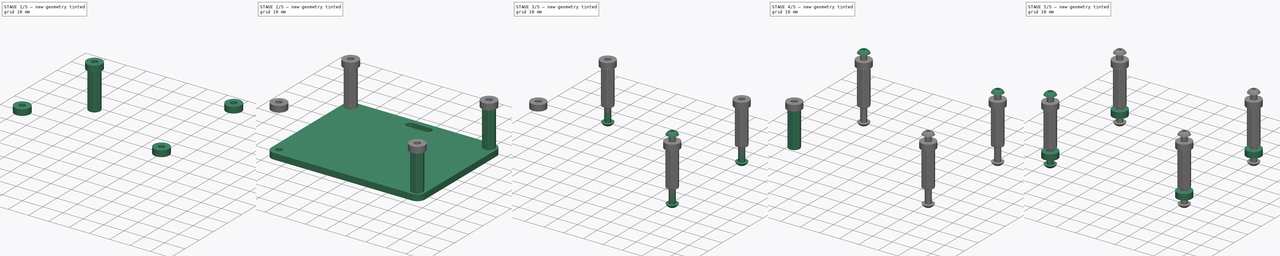
[diagram: build sequence overview — one tinted view per stage of 5, left to right]
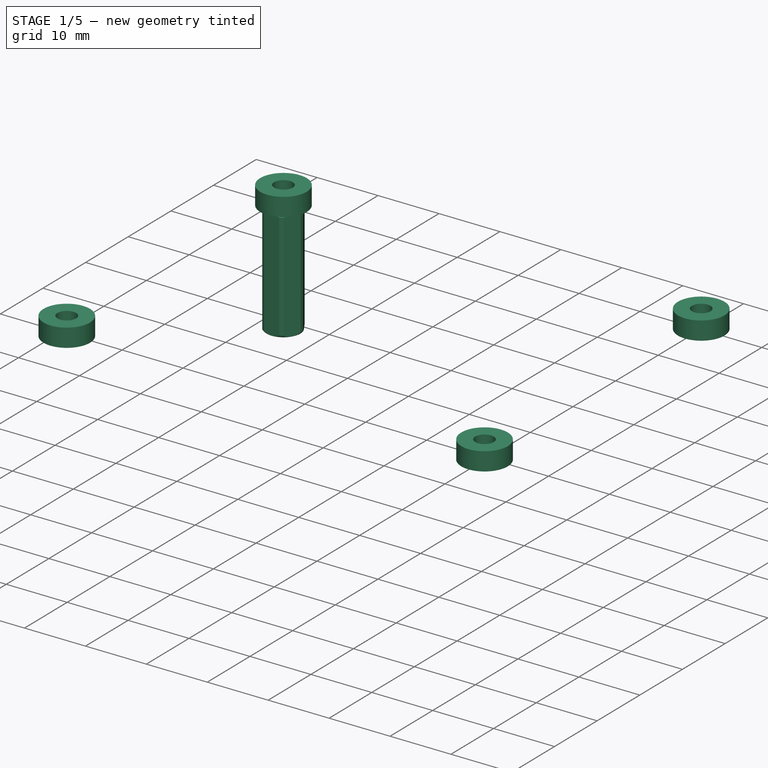
[diagram: stage 1 of 5 — iso view after this stage's code; geometry added in this stage tinted green]
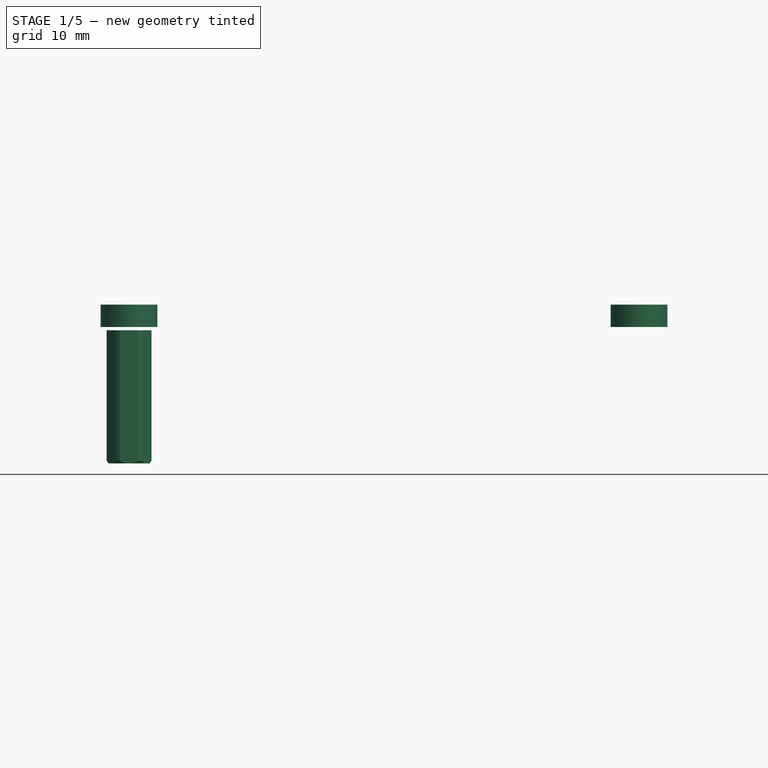
[diagram: stage 1 of 5 — front view after this stage's code; geometry added in this stage tinted green]
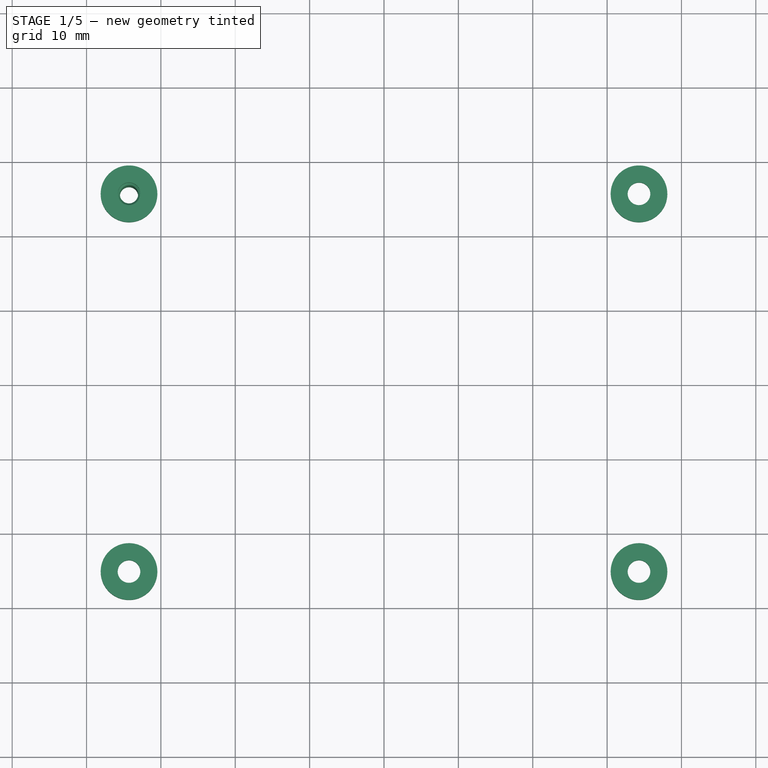
[diagram: stage 1 of 5 — top view after this stage's code; geometry added in this stage tinted green]
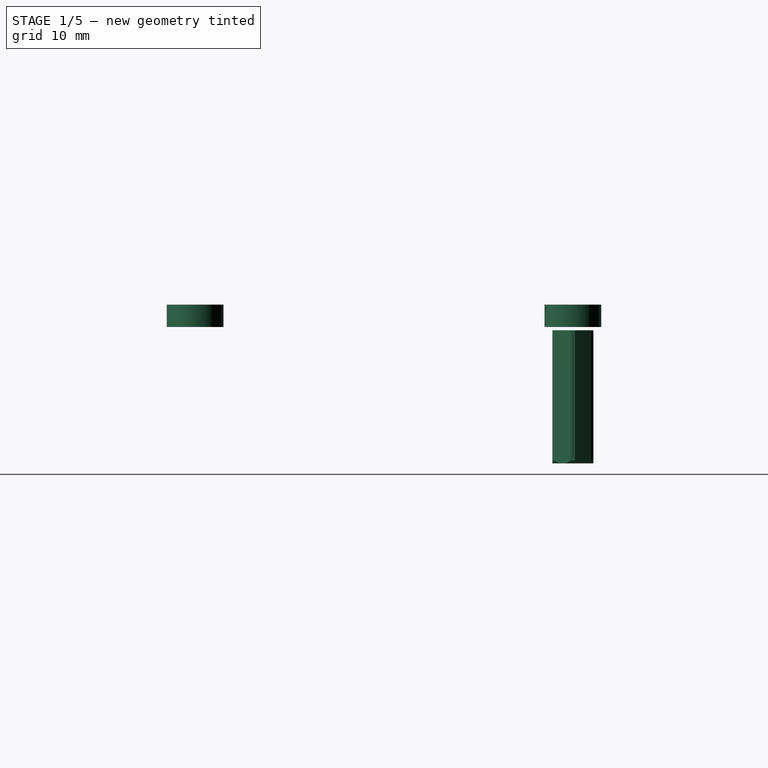
[diagram: stage 1 of 5 — right view after this stage's code; geometry added in this stage tinted green]
FCSTD DOCUMENT  (FreeCAD 0.20R29603 (Git))
Label: BagTag_v2
License: All rights reserved
LicenseURL: http://en.wikipedia.org/wiki/All_rights_reserved
objects: App::Link×176, Part::Feature×81, Part::FeaturePython×12, App::Part×8, Sketcher::SketchObject×5, PartDesign::SubShapeBinder×5, PartDesign::Pad×4, PartDesign::Body×4, PartDesign::CoordinateSystem×1, App::DocumentObjectGroup×1
note: 116 computed .brp shape members not serialized (recipe doc carries the construction recipe); baked Part::Feature solids carry a one-line shape summary decoded from their .brp

FEATURE [PartDesign::Body] Body001  label="Spacers_bottom"
  Group = -> [Sketch001,Binder001,Pad001]
  Origin = -> Origin012
  Tip = -> Pad001
FEATURE [PartDesign::SubShapeBinder] Binder002  label="Binder002(PCB_Sketch_fc76)"
  BindCopyOnChange = 0
  BindMode = 0
  ClaimChildren = false
  Context = -> Body002 [Binder002.]
  Fuse = false
  MakeFace = true
  OffsetFill = false
  OffsetIntersection = false
  OffsetJoinType = 0
  OffsetOpenResult = false
  PartialLoad = false
  Relative = true
  Support = -> [Board_fc76[Board_Geoms_fc76.PCB_Sketch_fc76.]]
  _Version = 8
FEATURE [PartDesign::SubShapeBinder] Binder003  label="Binder003(LED1_LED_matrix_8x8_socket004_4a1c2dfe1e64)"
  BindCopyOnChange = 0
  BindMode = 0
  ClaimChildren = false
  Context = -> Body002 [Binder003.]
  Fuse = false
  MakeFace = true
  OffsetFill = false
  OffsetIntersection = false
  OffsetJoinType = 0
  OffsetOpenResult = false
  PartialLoad = false
  Relative = true
  Support = -> [Board_fc76[Step_Models_fc76.Top_fc76.J2_LED_matrix_8x8_socket004_13e13e97bfa8_ln_001.]]
  _Version = 8
FEATURE [Sketcher::SketchObject] Sketch002
  ExternalGeometry = -> [Binder002,Binder003]
  FullyConstrained = true
  MapMode = 5
  Placement = pos=(2.6e-15,0,21.336) rot=(0,0,1;0rad)
  Support = -> [Binder003]
  sketch-geometry (41):
    g0: LineSegment StartX=-34.29 StartY=29.21 StartZ=0 EndX=34.29 EndY=29.21 EndZ=0
    g1: LineSegment StartX=38.1 StartY=25.4 StartZ=0 EndX=38.1 EndY=-25.4 EndZ=0
    g2: LineSegment StartX=34.29 StartY=-29.21 StartZ=0 EndX=-34.29 EndY=-29.21 EndZ=0
    g3: LineSegment StartX=-38.1 StartY=-25.4 StartZ=0 EndX=-38.1 EndY=25.4 EndZ=0
    g4: ArcOfCircle CenterX=-34.29 CenterY=25.4 CenterZ=0 NormalX=0 NormalY=0 NormalZ=1 AngleXU=0 Radius=3.81 StartAngle=1.5708 EndAngle=3.14159
    g5: GeomPoint X=-38.1 Y=29.21 Z=0
    g6: ArcOfCircle CenterX=34.29 CenterY=25.4 CenterZ=0 NormalX=0 NormalY=0 NormalZ=1 AngleXU=0 Radius=3.81 StartAngle=0 EndAngle=1.5708
    g7: GeomPoint X=38.1 Y=29.21 Z=0
    g8: ArcOfCircle CenterX=34.29 CenterY=-25.4 CenterZ=0 NormalX=0 NormalY=0 NormalZ=1 AngleXU=0 Radius=3.81 StartAngle=4.71239 EndAngle=6.28319
    g9: GeomPoint X=38.1 Y=-29.21 Z=0
    g10: ArcOfCircle CenterX=-34.29 CenterY=-25.4 CenterZ=0 NormalX=0 NormalY=0 NormalZ=1 AngleXU=0 Radius=3.81 StartAngle=3.14159 EndAngle=4.71239
    g11: GeomPoint X=-38.1 Y=-29.21 Z=0
    g12: Circle CenterX=-34.29 CenterY=-25.4 CenterZ=0 NormalX=0 NormalY=0 NormalZ=1 AngleXU=0 Radius=1.524
    g13: Circle CenterX=34.29 CenterY=-25.4 CenterZ=0 NormalX=0 NormalY=0 NormalZ=1 AngleXU=0 Radius=1.524
    g14: Circle CenterX=34.29 CenterY=25.4 CenterZ=0 NormalX=0 NormalY=0 NormalZ=1 AngleXU=0 Radius=1.524
    g15: Circle CenterX=-34.29 CenterY=25.4 CenterZ=0 NormalX=0 NormalY=0 NormalZ=1 AngleXU=0 Radius=1.524
    g16: ArcOfCircle CenterX=-4.445 CenterY=24.765 CenterZ=0 NormalX=0 NormalY=0 NormalZ=1 AngleXU=0 Radius=1.905 StartAngle=1.5708 EndAngle=4.71239
    g17: ArcOfCircle CenterX=4.44501 CenterY=24.765 CenterZ=0 NormalX=0 NormalY=0 NormalZ=1 AngleXU=0 Radius=1.905 StartAngle=4.71239 EndAngle=7.85398
    g18: LineSegment StartX=-4.445 StartY=22.86 StartZ=0 EndX=4.44501 EndY=22.86 EndZ=0
    g19: LineSegment StartX=-4.445 StartY=26.67 StartZ=0 EndX=4.44501 EndY=26.67 EndZ=0
    g20: LineSegment StartX=-16.4 StartY=16.4 StartZ=0 EndX=-8.965 EndY=16.4 EndZ=0
    g21: LineSegment StartX=16.4 StartY=16.4 StartZ=0 EndX=16.4 EndY=-16.4 EndZ=0
    g22: LineSegment StartX=16.4 StartY=-16.4 StartZ=0 EndX=-16.4 EndY=-16.4 EndZ=0
    g23: LineSegment StartX=-16.4 StartY=-16.4 StartZ=0 EndX=-16.4 EndY=16.4 EndZ=0
    g24: LineSegment StartX=-15.9 StartY=15.9 StartZ=0 EndX=-15.9 EndY=16.4 EndZ=0
    g25: LineSegment StartX=-15.9 StartY=15.9 StartZ=0 EndX=-16.4 EndY=15.9 EndZ=0
    g26: LineSegment StartX=15.9 StartY=-15.9 StartZ=0 EndX=16.4 EndY=-15.9 EndZ=0
    g27: LineSegment StartX=15.9 StartY=-15.9 StartZ=0 EndX=15.9 EndY=-16.4 EndZ=0
    g28: Circle CenterX=-13.97 CenterY=18.415 CenterZ=0 NormalX=0 NormalY=0 NormalZ=1 AngleXU=0 Radius=1
    g29: Circle CenterX=13.97 CenterY=18.415 CenterZ=0 NormalX=0 NormalY=0 NormalZ=1 AngleXU=0 Radius=1
    g30: Circle CenterX=13.97 CenterY=-18.415 CenterZ=0 NormalX=0 NormalY=0 NormalZ=1 AngleXU=0 Radius=1
    g31: Circle CenterX=-13.97 CenterY=-18.415 CenterZ=0 NormalX=0 NormalY=0 NormalZ=1 AngleXU=0 Radius=1
    g32: ArcOfCircle CenterX=-5.38 CenterY=18.1925 CenterZ=0 NormalX=0 NormalY=0 NormalZ=1 AngleXU=0 Radius=1.7925 StartAngle=1.5708 EndAngle=3.14159
    g33: ArcOfCircle CenterX=5.38 CenterY=18.1925 CenterZ=0 NormalX=0 NormalY=0 NormalZ=1 AngleXU=0 Radius=1.7925 StartAngle=4e-16 EndAngle=1.5708
    g34: LineSegment StartX=-5.38 StartY=19.985 StartZ=0 EndX=5.38 EndY=19.985 EndZ=0
    g35: LineSegment StartX=-5.08 StartY=19.685 StartZ=0 EndX=-5.08 EndY=19.985 EndZ=0
    g36: LineSegment StartX=-5.08 StartY=19.685 StartZ=0 EndX=-5.38 EndY=19.685 EndZ=0
    g37: LineSegment StartX=5.08 StartY=19.685 StartZ=0 EndX=5.38 EndY=19.685 EndZ=0
    g38: ArcOfCircle CenterX=-8.965 CenterY=18.1925 CenterZ=0 NormalX=0 NormalY=0 NormalZ=1 AngleXU=0 Radius=1.7925 StartAngle=4.71239 EndAngle=6.28319
    g39: ArcOfCircle CenterX=8.965 CenterY=18.1925 CenterZ=0 NormalX=0 NormalY=0 NormalZ=1 AngleXU=0 Radius=1.7925 StartAngle=3.14159 EndAngle=4.71239
    g40: LineSegment StartX=8.965 StartY=16.4 StartZ=0 EndX=16.4 EndY=16.4 EndZ=0
  constraints (101):
    c: Horizontal(g0)
    c: Horizontal(g2)
    c: Vertical(g1)
    c: Vertical(g3)
    c: PointOnObject(g-14,g3)
    c: PointOnObject(g-13,g1)
    c: PointOnObject(g-12,g2)
    c: PointOnObject(g-3,g0)
    c: PointOnObject(g5,g0)
    c: PointOnObject(g5,g3)
    c: Tangent(g0,g4) = 1.5708
    c: Tangent(g3,g4) = 1.5708
    c: PointOnObject(g7,g0)
    c: PointOnObject(g7,g1)
    c: Tangent(g0,g6) = 1.5708
    c: Tangent(g1,g6) = 1.5708
    c: PointOnObject(g9,g1)
    c: PointOnObject(g9,g2)
    c: Tangent(g1,g8) = 1.5708
    c: Tangent(g2,g8) = 1.5708
    c: PointOnObject(g11,g2)
    c: PointOnObject(g11,g3)
    c: Tangent(g2,g10) = 1.5708
    c: Tangent(g3,g10) = 1.5708
    c: Equal(g10,g8)
    c: Equal(g8,g6)
    c: Equal(g6,g4)
    c: Equal(g4,g-3)
    c: Coincident(g12,g10)
    c: Coincident(g13,g8)
    c: Coincident(g14,g6)
    c: Coincident(g15,g4)
    c: Equal(g-4,g15)
    c: Equal(g15,g14)
    c: Equal(g14,g13)
    c: Equal(g13,g12)
    c: Tangent(g16,g19) = 1.5708
    c: Tangent(g16,g18) = -1.5708
    c: Tangent(g18,g17) = -1.5708
    c: Tangent(g19,g17) = 1.5708
    c: Horizontal(g18)
    c: Equal(g16,g17)
    c: Coincident(g16,g-8)
    c: PointOnObject(g17,g-9)
    c: Equal(g16,g-8)
    c: Coincident(g40,g21)
    c: Coincident(g21,g22)
    c: Coincident(g22,g23)
    c: Coincident(g23,g20)
    c: Horizontal(g20)
    c: Horizontal(g22)
    c: Vertical(g21)
    c: Vertical(g23)
    c: Coincident(g24,g-10)
    c: PointOnObject(g24,g20)
    c: Vertical(g24)
    c: Coincident(g25,g-10)
    c: PointOnObject(g25,g23)
    c: Coincident(g26,g-11)
    c: PointOnObject(g26,g21)
    c: Horizontal(g26)
    c: Coincident(g27,g-11)
    c: PointOnObject(g27,g22)
    c: Vertical(g27)
    c: Horizontal(g25)
    c: Equal(g27,g26)
    c: Equal(g26,g24)
    c: Equal(g24,g25)
    c: DistanceY(g24,g24) = 0.5
    c: Coincident(g28,g-18)
    c: Tangent(g28,g-18)
    c: Coincident(g29,g-17)
    c: Tangent(g29,g-17)
    c: Coincident(g30,g-16)
    c: Tangent(g30,g-16)
    c: Coincident(g31,g-15)
    c: Equal(g-15,g31)
    c: Tangent(g32,g34) = 1.5708
    c: Tangent(g34,g33) = 1.5708
    c: Equal(g32,g33)
    c: Coincident(g35,g-19)
    c: PointOnObject(g35,g34)
    c: Vertical(g35)
    c: Coincident(g36,g-19)
    c: Horizontal(g36)
    c: Equal(g36,g35)
    c: Vertical(g36,g32)
    c: DistanceY(g35,g35) = 0.3
    c: Coincident(g37,g-19)
    c: Horizontal(g37)
    c: Equal(g37,g36)
    c: Vertical(g37,g33)
    c: Horizontal(g34)
    c: Tangent(g32,g38) = 1.5708
    c: Tangent(g33,g39) = 1.5708
    c: Equal(g38,g32)
    c: Equal(g32,g39)
    c: Horizontal(g38,g32)
    c: Tangent(g20,g38) = -1.5708
    c: Tangent(g40,g39) = -1.5708
    c: Tangent(g20,g40)
FEATURE [PartDesign::Pad] Pad002
  Direction = (1,1,1)
  Length = 3
  Length2 = 100
  Profile = -> Sketch002
  Type = 0
FEATURE [Part::FeaturePython] Spacer003  label="M3x18xx5.5-Spacer003"  # Fasteners workbench fastener (typed FeaturePython)
  Placement = pos=(-34.29,25.4,0) rot=(0,0,1;0rad)
  baseObject = -> Pcb_fc76 [Edge788]
  diameter = 2
  invert = false
  leftHanded = false
  length = 13
  lengthCustom = 18
  matchOuter = false
  offset = 0
  thread = false
  type = 0
  width = 1
FEATURE [App::DocumentObjectGroup] Group  label="Fasteners"
  Group = -> [Screw001,Screw,Screw002,Screw003,Screw004,Screw005,Screw006,Screw007,Spacer,Spacer001,Spacer002,Spacer003]
FEATURE [PartDesign::SubShapeBinder] Binder004  label="Binder004(Pad002)"
  BindCopyOnChange = 0
  BindMode = 0
  ClaimChildren = false
  Context = -> Body003 [Binder004.]
  Fuse = false
  MakeFace = true
  OffsetFill = false
  OffsetIntersection = false
  OffsetJoinType = 0
  OffsetOpenResult = false
  PartialLoad = false
  Relative = true
  Support = -> [Body002[Pad002.Face31]]
  _Version = 8
FEATURE [Sketcher::SketchObject] Sketch003
  ExternalGeometry = -> [Binder004]
  FullyConstrained = true
  MapMode = 5
  Placement = pos=(2.3e-15,0,21.336) rot=(1,0,0;3.14159rad)
  Support = -> [Binder004]
  sketch-geometry (17):
    g0: Circle CenterX=-34.29 CenterY=25.4 CenterZ=0 NormalX=0 NormalY=0 NormalZ=1 AngleXU=0 Radius=1.524
    g1: Circle CenterX=34.29 CenterY=25.4 CenterZ=0 NormalX=0 NormalY=0 NormalZ=1 AngleXU=0 Radius=1.524
    g2: Circle CenterX=34.29 CenterY=-25.4 CenterZ=0 NormalX=0 NormalY=0 NormalZ=1 AngleXU=0 Radius=1.524
    g3: Circle CenterX=-34.29 CenterY=-25.4 CenterZ=0 NormalX=0 NormalY=0 NormalZ=1 AngleXU=0 Radius=1.524
    g4: Circle CenterX=-34.29 CenterY=25.4 CenterZ=0 NormalX=0 NormalY=0 NormalZ=1 AngleXU=0 Radius=3.81
    g5: Circle CenterX=34.29 CenterY=25.4 CenterZ=0 NormalX=0 NormalY=0 NormalZ=1 AngleXU=0 Radius=3.81
    g6: Circle CenterX=34.29 CenterY=-25.4 CenterZ=0 NormalX=0 NormalY=0 NormalZ=1 AngleXU=0 Radius=3.81
    g7: Circle CenterX=-34.29 CenterY=-25.4 CenterZ=0 NormalX=0 NormalY=0 NormalZ=1 AngleXU=0 Radius=3.81
    g8: Circle CenterX=-10 CenterY=10 CenterZ=0 NormalX=0 NormalY=0 NormalZ=1 AngleXU=0 Radius=3.81
    g9: Circle CenterX=0 CenterY=10 CenterZ=0 NormalX=0 NormalY=0 NormalZ=1 AngleXU=0 Radius=3.81
    g10: Circle CenterX=10 CenterY=10 CenterZ=0 NormalX=0 NormalY=0 NormalZ=1 AngleXU=0 Radius=3.81
    g11: Circle CenterX=-10 CenterY=0 CenterZ=0 NormalX=0 NormalY=0 NormalZ=1 AngleXU=0 Radius=3.81
    g12: Circle CenterX=0 CenterY=0 CenterZ=0 NormalX=0 NormalY=0 NormalZ=1 AngleXU=0 Radius=3.81
    g13: Circle CenterX=10 CenterY=0 CenterZ=0 NormalX=0 NormalY=0 NormalZ=1 AngleXU=0 Radius=3.81
    g14: Circle CenterX=-10 CenterY=-10 CenterZ=0 NormalX=0 NormalY=0 NormalZ=1 AngleXU=0 Radius=3.81
    g15: Circle CenterX=0 CenterY=-10 CenterZ=0 NormalX=0 NormalY=0 NormalZ=1 AngleXU=0 Radius=3.81
    g16: Circle CenterX=10 CenterY=-10 CenterZ=0 NormalX=0 NormalY=0 NormalZ=1 AngleXU=0 Radius=3.81
  constraints (40):
    c: Coincident(g0,g-3)
    c: Equal(g0,g1)
    c: Equal(g1,g2)
    c: Equal(g2,g3)
    c: Equal(g3,g-4)
    c: Coincident(g1,g-4)
    c: Coincident(g2,g-5)
    c: Coincident(g3,g-6)
    c: Coincident(g4,g0)
    c: Coincident(g5,g1)
    c: Coincident(g6,g2)
    c: Coincident(g7,g3)
    c: Equal(g7,g6)
    c: Equal(g6,g5)
    c: Equal(g5,g4)
    c: Equal(g4,g-3)
    c: Equal(g16,g15)
    c: Equal(g15,g14)
    c: Equal(g14,g11)
    c: Equal(g11,g12)
    c: Equal(g12,g13)
    c: Equal(g13,g10)
    c: Equal(g10,g9)
    c: Equal(g9,g8)
    c: Equal(g8,g4)
    c: Horizontal(g8,g9)
    c: Horizontal(g9,g10)
    c: Horizontal(g11,g12)
    c: Horizontal(g14,g15)
    c: Horizontal(g15,g16)
    c: Vertical(g14,g11)
    c: Vertical(g11,g8)
    c: Vertical(g15,g12)
    c: Vertical(g16,g13)
    c: Vertical(g13,g10)
    c: Coincident(g12,g-1)
    c: Symmetric(g11,g13,g-2)
    c: Symmetric(g9,g15,g-1)
    c: DistanceX(g8,g9) = 10
    c: DistanceY(g11,g8) = 10
FEATURE [PartDesign::Pad] Pad003
  Direction = (1,1,1)
  Length = 3
  Length2 = 100
  Profile = -> Sketch003
  Type = 0
FEATURE [PartDesign::Body] Body003  label="Spacers_top"
  Group = -> [Binder004,Sketch003,Pad003]
  Origin = -> Origin014
  Tip = -> Pad003
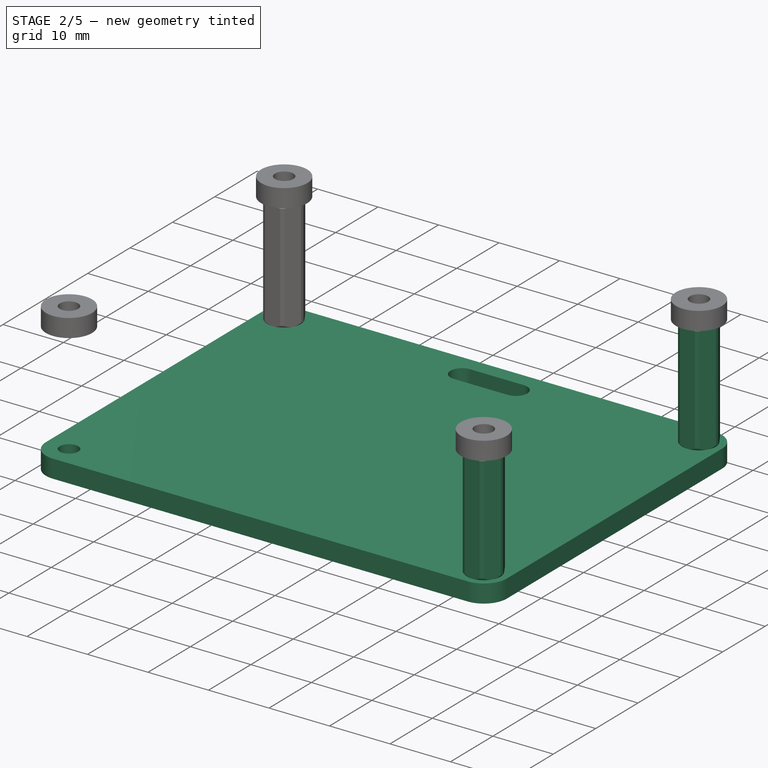
[diagram: stage 2 of 5 — iso view after this stage's code; geometry added in this stage tinted green]
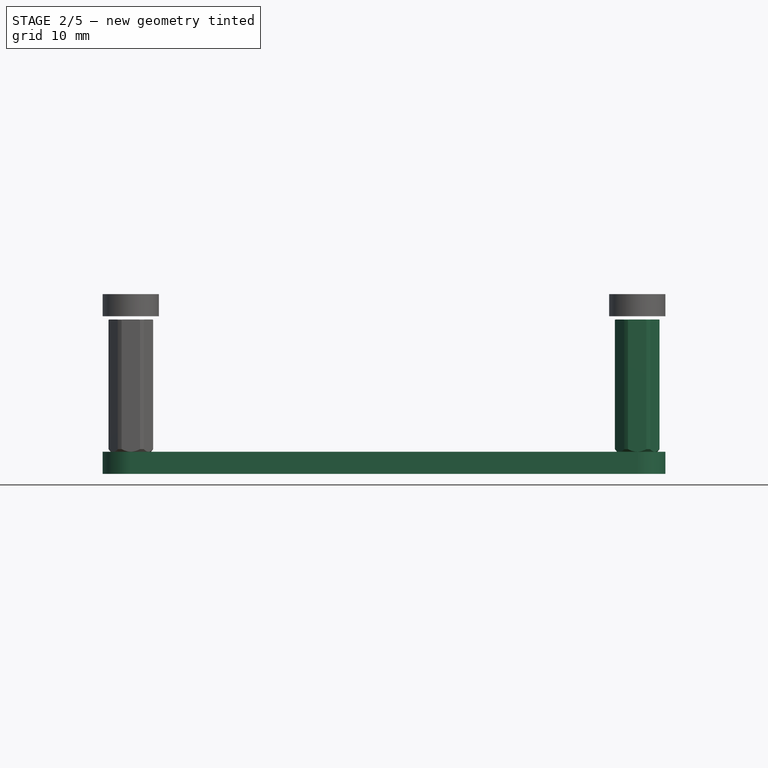
[diagram: stage 2 of 5 — front view after this stage's code; geometry added in this stage tinted green]
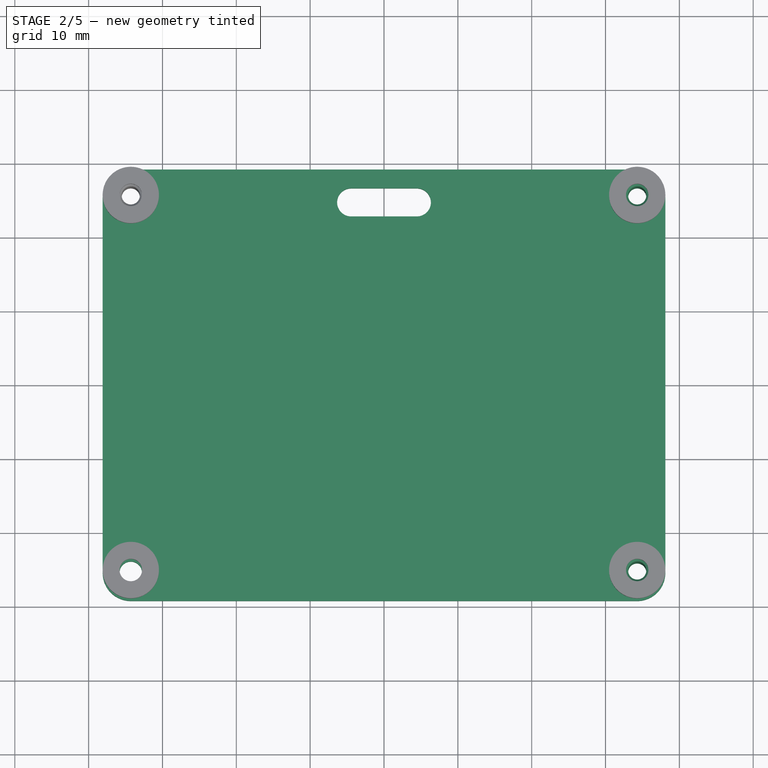
[diagram: stage 2 of 5 — top view after this stage's code; geometry added in this stage tinted green]
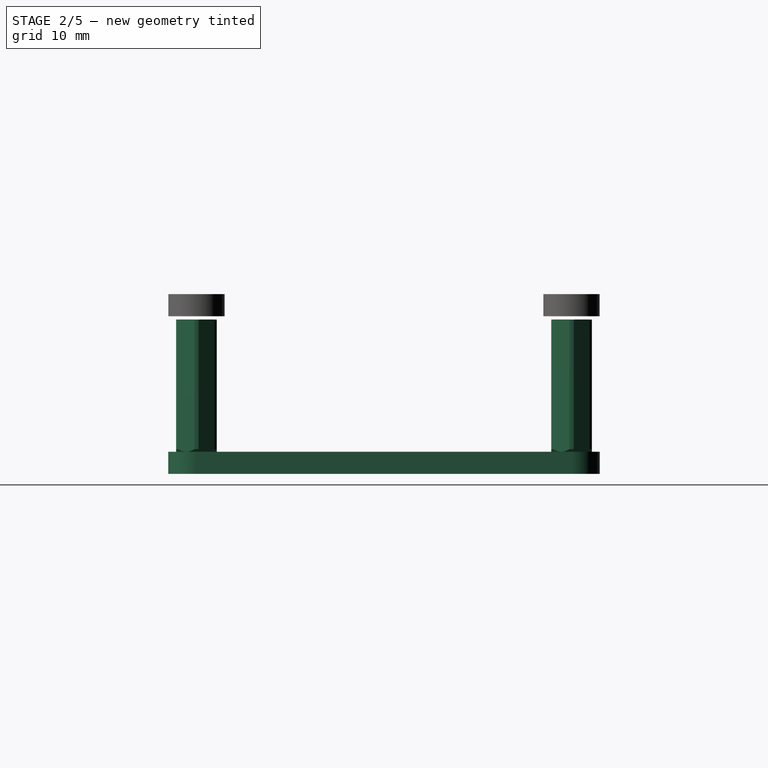
[diagram: stage 2 of 5 — right view after this stage's code; geometry added in this stage tinted green]
FEATURE [PartDesign::CoordinateSystem] Local_CS_fc76
  AttacherType = Attacher::AttachEngine3D
  MapMode = 2
  Support = -> [X_Axis001]
FEATURE [Part::Feature] Pcb_fc76
  Placement = pos=(-88.9,83.82,0) rot=(0,0,1;0rad)
  shape: bbox 76.2 x 58.42 x 1.6 mm, 265 faces (baked)
FEATURE [Sketcher::SketchObject] PCB_Sketch_fc76
  FullyConstrained = false
  sketch-geometry (18):
    g0: LineSegment StartX=4.445 StartY=22.86 StartZ=0 EndX=-4.445 EndY=22.86 EndZ=0
    g1: LineSegment StartX=-34.29 StartY=29.21 StartZ=0 EndX=34.29 EndY=29.21 EndZ=0
    g2: LineSegment StartX=34.29 StartY=-29.21 StartZ=0 EndX=-34.29 EndY=-29.21 EndZ=0
    g3: LineSegment StartX=38.1 StartY=25.4 StartZ=0 EndX=38.1 EndY=-25.4 EndZ=0
    g4: LineSegment StartX=-4.445 StartY=26.67 StartZ=0 EndX=4.445 EndY=26.67 EndZ=0
    g5: LineSegment StartX=-38.1 StartY=-25.4 StartZ=0 EndX=-38.1 EndY=25.4 EndZ=0
    g6: ArcOfCircle CenterX=34.29 CenterY=25.4 CenterZ=0 NormalX=0 NormalY=0 NormalZ=-1 AngleXU=1.5708 Radius=3.81 StartAngle=0 EndAngle=1.5708
    g7: ArcOfCircle CenterX=-4.445 CenterY=24.765 CenterZ=0 NormalX=0 NormalY=0 NormalZ=-1 AngleXU=-1.5708 Radius=1.905 StartAngle=0 EndAngle=3.14159
    g8: ArcOfCircle CenterX=34.29 CenterY=-25.4 CenterZ=0 NormalX=0 NormalY=0 NormalZ=-1 AngleXU=3.14159 Radius=3.81 StartAngle=0 EndAngle=1.5708
    g9: ArcOfCircle CenterX=-34.29 CenterY=25.4 CenterZ=0 NormalX=0 NormalY=0 NormalZ=-1 AngleXU=-1.46676e-07 Radius=3.81 StartAngle=0 EndAngle=1.5708
    g10: ArcOfCircle CenterX=4.445 CenterY=24.765 CenterZ=0 NormalX=0 NormalY=0 NormalZ=-1 AngleXU=1.5708 Radius=1.905 StartAngle=0 EndAngle=3.14159
    g11: ArcOfCircle CenterX=-34.29 CenterY=-25.4 CenterZ=0 NormalX=0 NormalY=0 NormalZ=-1 AngleXU=-1.5708 Radius=3.81 StartAngle=0 EndAngle=1.5708
    g12: Circle CenterX=35.56 CenterY=-17.272 CenterZ=0 NormalX=0 NormalY=0 NormalZ=1 AngleXU=0 Radius=1.54502
    g13: Circle CenterX=34.29 CenterY=25.4 CenterZ=0 NormalX=0 NormalY=0 NormalZ=1 AngleXU=0 Radius=1.524
    g14: Circle CenterX=35.56 CenterY=-21.336 CenterZ=0 NormalX=0 NormalY=0 NormalZ=1 AngleXU=0 Radius=1.524
    g15: Circle CenterX=-34.29 CenterY=-25.4 CenterZ=0 NormalX=0 NormalY=0 NormalZ=1 AngleXU=0 Radius=1.524
    g16: Circle CenterX=34.29 CenterY=-25.4 CenterZ=0 NormalX=0 NormalY=0 NormalZ=1 AngleXU=0 Radius=1.524
    g17: Circle CenterX=-34.29 CenterY=25.4 CenterZ=0 NormalX=0 NormalY=0 NormalZ=1 AngleXU=0 Radius=1.524
  constraints (12):
    c: Coincident(g5,g11)
    c: Coincident(g5,g9)
    c: Coincident(g2,g11)
    c: Coincident(g1,g9)
    c: Coincident(g0,g7)
    c: Coincident(g4,g7)
    c: Coincident(g0,g10)
    c: Coincident(g4,g10)
    c: Coincident(g2,g8)
    c: Coincident(g1,g6)
    c: Coincident(g3,g8)
    c: Coincident(g3,g6)
FEATURE [Part::Feature] Shape  label="J203_PinHeader_1x01_P254mm_Vertical_da6c4aed0287"
  Placement = pos=(17.78,-6.35,0) rot=(0,0,1;1.5708rad)
  shape: bbox 2.54 x 2.54 x 11.54 mm, 28 faces (baked)
FEATURE [App::Link] J203_PinHeader_1x01_P254mm_Vertical_da6c4aed0287_ln_  label="J129_PinHeader_1x01_P254mm_Vertical_773ae547e81d"
  LinkPlacement = pos=(-25.4,1.27,0) rot=(0,0,1;1.5708rad)
  LinkedObject = -> Shape
  Placement = pos=(-25.4,1.27,0) rot=(0,0,1;1.5708rad)
FEATURE [App::Link] J203_PinHeader_1x01_P254mm_Vertical_da6c4aed0287_ln_001  label="J118_PinHeader_1x01_P254mm_Vertical_5aa259a9185c"
  LinkPlacement = pos=(-27.94,6.35,0) rot=(0,0,1;1.5708rad)
  LinkedObject = -> Shape
  Placement = pos=(-27.94,6.35,0) rot=(0,0,1;1.5708rad)
FEATURE [App::Link] J203_PinHeader_1x01_P254mm_Vertical_da6c4aed0287_ln_002  label="J208_PinHeader_1x01_P254mm_Vertical_72f53bb47756"
  LinkPlacement = pos=(17.78,-8.89,0) rot=(0,0,1;1.5708rad)
  LinkedObject = -> Shape
  Placement = pos=(17.78,-8.89,0) rot=(0,0,1;1.5708rad)
FEATURE [App::Link] J203_PinHeader_1x01_P254mm_Vertical_da6c4aed0287_ln_003  label="J192_PinHeader_1x01_P254mm_Vertical_2792789bb18d"
  LinkPlacement = pos=(0,-11.43,0) rot=(0,0,1;1.5708rad)
  LinkedObject = -> Shape
  Placement = pos=(0,-11.43,0) rot=(0,0,1;1.5708rad)
FEATURE [App::Link] J203_PinHeader_1x01_P254mm_Vertical_da6c4aed0287_ln_004  label="J112_PinHeader_1x01_P254mm_Vertical_6a244c9ca252"
  LinkPlacement = pos=(-30.48,8.89,0) rot=(0,0,1;1.5708rad)
  LinkedObject = -> Shape
  Placement = pos=(-30.48,8.89,0) rot=(0,0,1;1.5708rad)
FEATURE [App::Link] J203_PinHeader_1x01_P254mm_Vertical_da6c4aed0287_ln_005  label="J137_PinHeader_1x01_P254mm_Vertical_9c543508d3f7"
  LinkPlacement = pos=(-30.48,-3.81,0) rot=(0,0,1;1.5708rad)
  LinkedObject = -> Shape
  Placement = pos=(-30.48,-3.81,0) rot=(0,0,1;1.5708rad)
FEATURE [App::Link] J203_PinHeader_1x01_P254mm_Vertical_da6c4aed0287_ln_006  label="J141_PinHeader_1x01_P254mm_Vertical_27754063a736"
  LinkPlacement = pos=(-33.02,-6.35,0) rot=(0,0,1;1.5708rad)
  LinkedObject = -> Shape
  Placement = pos=(-33.02,-6.35,0) rot=(0,0,1;1.5708rad)
FEATURE [App::Link] J203_PinHeader_1x01_P254mm_Vertical_da6c4aed0287_ln_007  label="J127_PinHeader_1x01_P254mm_Vertical_64cb25116942"
  LinkPlacement = pos=(-30.48,1.27,0) rot=(0,0,1;1.5708rad)
  LinkedObject = -> Shape
  Placement = pos=(-30.48,1.27,0) rot=(0,0,1;1.5708rad)
FEATURE [App::Link] J203_PinHeader_1x01_P254mm_Vertical_da6c4aed0287_ln_008  label="J109_PinHeader_1x01_P254mm_Vertical_46e97698a8e3"
  LinkPlacement = pos=(-25.4,11.43,0) rot=(0,0,1;1.5708rad)
  LinkedObject = -> Shape
  Placement = pos=(-25.4,11.43,0) rot=(0,0,1;1.5708rad)
FEATURE [App::Link] J203_PinHeader_1x01_P254mm_Vertical_da6c4aed0287_ln_009  label="J136_PinHeader_1x01_P254mm_Vertical_3277878d9fcc"
  LinkPlacement = pos=(-33.02,-3.81,0) rot=(0,0,1;1.5708rad)
  LinkedObject = -> Shape
  Placement = pos=(-33.02,-3.81,0) rot=(0,0,1;1.5708rad)
FEATURE [App::Link] J203_PinHeader_1x01_P254mm_Vertical_da6c4aed0287_ln_010  label="J174_PinHeader_1x01_P254mm_Vertical_6a619a310b17"
  LinkPlacement = pos=(-10.16,-11.43,0) rot=(0,0,1;1.5708rad)
  LinkedObject = -> Shape
  Placement = pos=(-10.16,-11.43,0) rot=(0,0,1;1.5708rad)
FEATURE [App::Link] J203_PinHeader_1x01_P254mm_Vertical_da6c4aed0287_ln_011  label="J163_PinHeader_1x01_P254mm_Vertical_eca1b71ce0e1"
  LinkPlacement = pos=(-12.7,-6.35,0) rot=(0,0,1;1.5708rad)
  LinkedObject = -> Shape
  Placement = pos=(-12.7,-6.35,0) rot=(0,0,1;1.5708rad)
FEATURE [App::Link] J203_PinHeader_1x01_P254mm_Vertical_da6c4aed0287_ln_012  label="J221_PinHeader_1x01_P254mm_Vertical_e87cc0828aff"
  LinkPlacement = pos=(25.4,11.43,0) rot=(0,0,1;1.5708rad)
  LinkedObject = -> Shape
  Placement = pos=(25.4,11.43,0) rot=(0,0,1;1.5708rad)
FEATURE [App::Link] J203_PinHeader_1x01_P254mm_Vertical_da6c4aed0287_ln_013  label="J145_PinHeader_1x01_P254mm_Vertical_00ab3d87ffcd"
  LinkPlacement = pos=(-35.56,-8.89,0) rot=(0,0,1;1.5708rad)
  LinkedObject = -> Shape
  Placement = pos=(-35.56,-8.89,0) rot=(0,0,1;1.5708rad)
FEATURE [App::Link] J203_PinHeader_1x01_P254mm_Vertical_da6c4aed0287_ln_014  label="J177_PinHeader_1x01_P254mm_Vertical_e80f5348a3fd"
  LinkPlacement = pos=(-15.24,-13.97,0) rot=(0,0,1;1.5708rad)
  LinkedObject = -> Shape
  Placement = pos=(-15.24,-13.97,0) rot=(0,0,1;1.5708rad)
FEATURE [App::Link] J203_PinHeader_1x01_P254mm_Vertical_da6c4aed0287_ln_015  label="J207_PinHeader_1x01_P254mm_Vertical_62e98df2bb86"
  LinkPlacement = pos=(15.24,-8.89,0) rot=(0,0,1;1.5708rad)
  LinkedObject = -> Shape
  Placement = pos=(15.24,-8.89,0) rot=(0,0,1;1.5708rad)
FEATURE [App::Link] J203_PinHeader_1x01_P254mm_Vertical_da6c4aed0287_ln_016  label="J191_PinHeader_1x01_P254mm_Vertical_de5b5ec60197"
  LinkPlacement = pos=(-2.54,-11.43,0) rot=(0,0,1;1.5708rad)
  LinkedObject = -> Shape
  Placement = pos=(-2.54,-11.43,0) rot=(0,0,1;1.5708rad)
FEATURE [App::Link] J203_PinHeader_1x01_P254mm_Vertical_da6c4aed0287_ln_017  label="J166_PinHeader_1x01_P254mm_Vertical_84919f920f7b"
  LinkPlacement = pos=(-17.78,-8.89,0) rot=(0,0,1;1.5708rad)
  LinkedObject = -> Shape
  Placement = pos=(-17.78,-8.89,0) rot=(0,0,1;1.5708rad)
FEATURE [App::Link] J203_PinHeader_1x01_P254mm_Vertical_da6c4aed0287_ln_018  label="J153_PinHeader_1x01_P254mm_Vertical_de25c8d6ebfc"
  LinkPlacement = pos=(-27.94,-11.43,0) rot=(0,0,1;1.5708rad)
  LinkedObject = -> Shape
  Placement = pos=(-27.94,-11.43,0) rot=(0,0,1;1.5708rad)
FEATURE [App::Link] J203_PinHeader_1x01_P254mm_Vertical_da6c4aed0287_ln_019  label="J146_PinHeader_1x01_P254mm_Vertical_6cd363f12a80"
  LinkPlacement = pos=(-33.02,-8.89,0) rot=(0,0,1;1.5708rad)
  LinkedObject = -> Shape
  Placement = pos=(-33.02,-8.89,0) rot=(0,0,1;1.5708rad)
FEATURE [App::Link] J203_PinHeader_1x01_P254mm_Vertical_da6c4aed0287_ln_020  label="J160_PinHeader_1x01_P254mm_Vertical_7b98299fb2b6"
  LinkPlacement = pos=(-20.32,-6.35,0) rot=(0,0,1;1.5708rad)
  LinkedObject = -> Shape
  Placement = pos=(-20.32,-6.35,0) rot=(0,0,1;1.5708rad)
FEATURE [App::Link] J203_PinHeader_1x01_P254mm_Vertical_da6c4aed0287_ln_021  label="J214_PinHeader_1x01_P254mm_Vertical_d33f2c13bd96"
  LinkPlacement = pos=(20.32,-11.43,0) rot=(0,0,1;1.5708rad)
  LinkedObject = -> Shape
  Placement = pos=(20.32,-11.43,0) rot=(0,0,1;1.5708rad)
FEATURE [App::Link] J203_PinHeader_1x01_P254mm_Vertical_da6c4aed0287_ln_022  label="J142_PinHeader_1x01_P254mm_Vertical_ebb3536fd29e"
  LinkPlacement = pos=(-30.48,-6.35,0) rot=(0,0,1;1.5708rad)
  LinkedObject = -> Shape
  Placement = pos=(-30.48,-6.35,0) rot=(0,0,1;1.5708rad)
FEATURE [App::Link] J203_PinHeader_1x01_P254mm_Vertical_da6c4aed0287_ln_023  label="J126_PinHeader_1x01_P254mm_Vertical_9a14729430aa"
  LinkPlacement = pos=(-33.02,1.27,0) rot=(0,0,1;1.5708rad)
  LinkedObject = -> Shape
  Placement = pos=(-33.02,1.27,0) rot=(0,0,1;1.5708rad)
FEATURE [App::Link] J203_PinHeader_1x01_P254mm_Vertical_da6c4aed0287_ln_024  label="J198_PinHeader_1x01_P254mm_Vertical_e60d4ac48af7"
  LinkPlacement = pos=(2.54,-13.97,0) rot=(0,0,1;1.5708rad)
  LinkedObject = -> Shape
  Placement = pos=(2.54,-13.97,0) rot=(0,0,1;1.5708rad)
FEATURE [App::Link] J203_PinHeader_1x01_P254mm_Vertical_da6c4aed0287_ln_025  label="J167_PinHeader_1x01_P254mm_Vertical_5f2264147a32"
  LinkPlacement = pos=(-15.24,-8.89,0) rot=(0,0,1;1.5708rad)
  LinkedObject = -> Shape
  Placement = pos=(-15.24,-8.89,0) rot=(0,0,1;1.5708rad)
FEATURE [App::Link] J203_PinHeader_1x01_P254mm_Vertical_da6c4aed0287_ln_026  label="J175_PinHeader_1x01_P254mm_Vertical_2f2c6f5fa7e0"
  LinkPlacement = pos=(-20.32,-13.97,0) rot=(0,0,1;1.5708rad)
  LinkedObject = -> Shape
  Placement = pos=(-20.32,-13.97,0) rot=(0,0,1;1.5708rad)
FEATURE [App::Link] J203_PinHeader_1x01_P254mm_Vertical_da6c4aed0287_ln_027  label="J185_PinHeader_1x01_P254mm_Vertical_64dd41409d9f"
  LinkPlacement = pos=(-5.08,-8.89,0) rot=(0,0,1;1.5708rad)
  LinkedObject = -> Shape
  Placement = pos=(-5.08,-8.89,0) rot=(0,0,1;1.5708rad)
FEATURE [App::Link] J203_PinHeader_1x01_P254mm_Vertical_da6c4aed0287_ln_028  label="J128_PinHeader_1x01_P254mm_Vertical_14a406c96dca"
  LinkPlacement = pos=(-27.94,1.27,0) rot=(0,0,1;1.5708rad)
  LinkedObject = -> Shape
  Placement = pos=(-27.94,1.27,0) rot=(0,0,1;1.5708rad)
FEATURE [App::Link] J203_PinHeader_1x01_P254mm_Vertical_da6c4aed0287_ln_029  label="J212_PinHeader_1x01_P254mm_Vertical_684e6d7036d3"
  LinkPlacement = pos=(15.24,-11.43,0) rot=(0,0,1;1.5708rad)
  LinkedObject = -> Shape
  Placement = pos=(15.24,-11.43,0) rot=(0,0,1;1.5708rad)
FEATURE [App::Link] J203_PinHeader_1x01_P254mm_Vertical_da6c4aed0287_ln_030  label="J181_PinHeader_1x01_P254mm_Vertical_3395830e7b0b"
  LinkPlacement = pos=(-2.54,-6.35,0) rot=(0,0,1;1.5708rad)
  LinkedObject = -> Shape
  Placement = pos=(-2.54,-6.35,0) rot=(0,0,1;1.5708rad)
FEATURE [App::Link] J203_PinHeader_1x01_P254mm_Vertical_da6c4aed0287_ln_031  label="J158_PinHeader_1x01_P254mm_Vertical_ad3d40650960"
  LinkPlacement = pos=(-27.94,-13.97,0) rot=(0,0,1;1.5708rad)
  LinkedObject = -> Shape
  Placement = pos=(-27.94,-13.97,0) rot=(0,0,1;1.5708rad)
FEATURE [App::Link] J203_PinHeader_1x01_P254mm_Vertical_da6c4aed0287_ln_032  label="J104_PinHeader_1x01_P254mm_Vertical_8b62ba1c48d5"
  LinkPlacement = pos=(-25.4,13.97,0) rot=(0,0,1;1.5708rad)
  LinkedObject = -> Shape
  Placement = pos=(-25.4,13.97,0) rot=(0,0,1;1.5708rad)
FEATURE [App::Link] J203_PinHeader_1x01_P254mm_Vertical_da6c4aed0287_ln_033  label="J197_PinHeader_1x01_P254mm_Vertical_d9d08025a7fb"
  LinkPlacement = pos=(0,-13.97,0) rot=(0,0,1;1.5708rad)
  LinkedObject = -> Shape
  Placement = pos=(0,-13.97,0) rot=(0,0,1;1.5708rad)
FEATURE [App::Link] J203_PinHeader_1x01_P254mm_Vertical_da6c4aed0287_ln_034  label="J195_PinHeader_1x01_P254mm_Vertical_3bb2cf8e585d"
  LinkPlacement = pos=(-5.08,-13.97,0) rot=(0,0,1;1.5708rad)
  LinkedObject = -> Shape
  Placement = pos=(-5.08,-13.97,0) rot=(0,0,1;1.5708rad)
FEATURE [App::Link] J203_PinHeader_1x01_P254mm_Vertical_da6c4aed0287_ln_035  label="J204_PinHeader_1x01_P254mm_Vertical_428c39a7f71f"
  LinkPlacement = pos=(20.32,-6.35,0) rot=(0,0,1;1.5708rad)
  LinkedObject = -> Shape
  Placement = pos=(20.32,-6.35,0) rot=(0,0,1;1.5708rad)
FEATURE [Part::Feature] Part__Feature  label="LED_matrix_8x8_socket"
  shape: bbox 2.54 x 10.16 x 10.1 mm, 134 faces (baked)
FEATURE [Part::Feature] Part__Feature001  label="LED_matrix_8x8_socket001"
  shape: bbox 2.54 x 10.16 x 10.1 mm, 134 faces (baked)
FEATURE [Part::Feature] Part__Feature002  label="LED_matrix_8x8_socket002"
  shape: bbox 2.54 x 10.16 x 11.54 mm, 100 faces (baked)
FEATURE [Part::Feature] Part__Feature003  label="LED_matrix_8x8_socket003"
  shape: bbox 40.64 x 32 x 12.22 mm, 884 faces (baked)
FEATURE [App::Part] LED_matrix_8x8_socket  label="J2_LED_matrix_8x8_socket004_13e13e97bfa8"
  Group = -> [Part__Feature,Part__Feature001,Part__Feature002,Part__Feature003]
  Origin = -> Origin008
  Placement = pos=(16.51,18.415,0) rot=(0,0,-1;1.5708rad)
FEATURE [App::Link] J203_PinHeader_1x01_P254mm_Vertical_da6c4aed0287_ln_036  label="J242_PinHeader_1x01_P254mm_Vertical_00fbceee7ab9"
  LinkPlacement = pos=(30.48,-11.43,0) rot=(0,0,1;1.5708rad)
  LinkedObject = -> Shape
  Placement = pos=(30.48,-11.43,0) rot=(0,0,1;1.5708rad)
FEATURE [App::Link] J203_PinHeader_1x01_P254mm_Vertical_da6c4aed0287_ln_037  label="J235_PinHeader_1x01_P254mm_Vertical_68c39cdf1477"
  LinkPlacement = pos=(30.48,6.35,0) rot=(0,0,1;1.5708rad)
  LinkedObject = -> Shape
  Placement = pos=(30.48,6.35,0) rot=(0,0,1;1.5708rad)
FEATURE [App::Link] J203_PinHeader_1x01_P254mm_Vertical_da6c4aed0287_ln_038  label="J215_PinHeader_1x01_P254mm_Vertical_30fb8c6109c9"
  LinkPlacement = pos=(10.16,-13.97,0) rot=(0,0,1;1.5708rad)
  LinkedObject = -> Shape
  Placement = pos=(10.16,-13.97,0) rot=(0,0,1;1.5708rad)
FEATURE [App::Link] J203_PinHeader_1x01_P254mm_Vertical_da6c4aed0287_ln_039  label="J155_PinHeader_1x01_P254mm_Vertical_cbb93bdeda80"
  LinkPlacement = pos=(-35.56,-13.97,0) rot=(0,0,1;1.5708rad)
  LinkedObject = -> Shape
  Placement = pos=(-35.56,-13.97,0) rot=(0,0,1;1.5708rad)
FEATURE [App::Link] J203_PinHeader_1x01_P254mm_Vertical_da6c4aed0287_ln_040  label="J134_PinHeader_1x01_P254mm_Vertical_c71becf67217"
  LinkPlacement = pos=(-25.4,-1.27,0) rot=(0,0,1;1.5708rad)
  LinkedObject = -> Shape
  Placement = pos=(-25.4,-1.27,0) rot=(0,0,1;1.5708rad)
FEATURE [App::Link] J203_PinHeader_1x01_P254mm_Vertical_da6c4aed0287_ln_041  label="J216_PinHeader_1x01_P254mm_Vertical_3caf071db488"
  LinkPlacement = pos=(12.7,-13.97,0) rot=(0,0,1;1.5708rad)
  LinkedObject = -> Shape
  Placement = pos=(12.7,-13.97,0) rot=(0,0,1;1.5708rad)
FEATURE [App::Link] J203_PinHeader_1x01_P254mm_Vertical_da6c4aed0287_ln_042  label="J184_PinHeader_1x01_P254mm_Vertical_249d3775cc33"
  LinkPlacement = pos=(5.08,-6.35,0) rot=(0,0,1;1.5708rad)
  LinkedObject = -> Shape
  Placement = pos=(5.08,-6.35,0) rot=(0,0,1;1.5708rad)
FEATURE [App::Link] J203_PinHeader_1x01_P254mm_Vertical_da6c4aed0287_ln_043  label="J190_PinHeader_1x01_P254mm_Vertical_a719b4abe7b1"
  LinkPlacement = pos=(-5.08,-11.43,0) rot=(0,0,1;1.5708rad)
  LinkedObject = -> Shape
  Placement = pos=(-5.08,-11.43,0) rot=(0,0,1;1.5708rad)
FEATURE [App::Link] J203_PinHeader_1x01_P254mm_Vertical_da6c4aed0287_ln_044  label="J187_PinHeader_1x01_P254mm_Vertical_f1aa55f767d0"
  LinkPlacement = pos=(0,-8.89,0) rot=(0,0,1;1.5708rad)
  LinkedObject = -> Shape
  Placement = pos=(0,-8.89,0) rot=(0,0,1;1.5708rad)
FEATURE [App::Link] J203_PinHeader_1x01_P254mm_Vertical_da6c4aed0287_ln_045  label="J201_PinHeader_1x01_P254mm_Vertical_cecdf641149b"
  LinkPlacement = pos=(12.7,-6.35,0) rot=(0,0,1;1.5708rad)
  LinkedObject = -> Shape
  Placement = pos=(12.7,-6.35,0) rot=(0,0,1;1.5708rad)
FEATURE [App::Link] J203_PinHeader_1x01_P254mm_Vertical_da6c4aed0287_ln_046  label="J234_PinHeader_1x01_P254mm_Vertical_5beb73ee3343"
  LinkPlacement = pos=(30.48,8.89,0) rot=(0,0,1;1.5708rad)
  LinkedObject = -> Shape
  Placement = pos=(30.48,8.89,0) rot=(0,0,1;1.5708rad)
FEATURE [App::Link] J203_PinHeader_1x01_P254mm_Vertical_da6c4aed0287_ln_047  label="J210_PinHeader_1x01_P254mm_Vertical_d780b6723fc1"
  LinkPlacement = pos=(10.16,-11.43,0) rot=(0,0,1;1.5708rad)
  LinkedObject = -> Shape
  Placement = pos=(10.16,-11.43,0) rot=(0,0,1;1.5708rad)
FEATURE [App::Link] J203_PinHeader_1x01_P254mm_Vertical_da6c4aed0287_ln_048  label="J186_PinHeader_1x01_P254mm_Vertical_971ca6a70be6"
  LinkPlacement = pos=(-2.54,-8.89,0) rot=(0,0,1;1.5708rad)
  LinkedObject = -> Shape
  Placement = pos=(-2.54,-8.89,0) rot=(0,0,1;1.5708rad)
FEATURE [App::Link] J2_LED_matrix_8x8_socket004_13e13e97bfa8_ln_  label="J1_LED_matrix_8x8_socket004_606130f15359"
  LinkPlacement = pos=(-16.51,18.415,0) rot=(0,0,-1;1.5708rad)
  LinkedObject = -> LED_matrix_8x8_socket
  Placement = pos=(-16.51,18.415,0) rot=(0,0,-1;1.5708rad)
FEATURE [App::Link] J2_LED_matrix_8x8_socket004_13e13e97bfa8_ln_001  label="LED1_LED_matrix_8x8_socket004_4a1c2dfe1e64"
  LinkPlacement = pos=(0,18.415,0) rot=(0,0,-1;1.5708rad)
  LinkedObject = -> LED_matrix_8x8_socket
  Placement = pos=(0,18.415,0) rot=(0,0,-1;1.5708rad)
FEATURE [App::Link] J203_PinHeader_1x01_P254mm_Vertical_da6c4aed0287_ln_049  label="J113_PinHeader_1x01_P254mm_Vertical_037e9dbc6d28"
  LinkPlacement = pos=(-27.94,8.89,0) rot=(0,0,1;1.5708rad)
  LinkedObject = -> Shape
  Placement = pos=(-27.94,8.89,0) rot=(0,0,1;1.5708rad)
FEATURE [App::Link] J203_PinHeader_1x01_P254mm_Vertical_da6c4aed0287_ln_050  label="J156_PinHeader_1x01_P254mm_Vertical_f91dea8db7ee"
  LinkPlacement = pos=(-33.02,-13.97,0) rot=(0,0,1;1.5708rad)
  LinkedObject = -> Shape
  Placement = pos=(-33.02,-13.97,0) rot=(0,0,1;1.5708rad)
FEATURE [App::Link] J203_PinHeader_1x01_P254mm_Vertical_da6c4aed0287_ln_051  label="J193_PinHeader_1x01_P254mm_Vertical_db89102eea80"
  LinkPlacement = pos=(2.54,-11.43,0) rot=(0,0,1;1.5708rad)
  LinkedObject = -> Shape
  Placement = pos=(2.54,-11.43,0) rot=(0,0,1;1.5708rad)
FEATURE [App::Link] J203_PinHeader_1x01_P254mm_Vertical_da6c4aed0287_ln_052  label="J125_PinHeader_1x01_P254mm_Vertical_bb6de2ac7262"
  LinkPlacement = pos=(-35.56,1.27,0) rot=(0,0,1;1.5708rad)
  LinkedObject = -> Shape
  Placement = pos=(-35.56,1.27,0) rot=(0,0,1;1.5708rad)
FEATURE [App::Link] J203_PinHeader_1x01_P254mm_Vertical_da6c4aed0287_ln_053  label="J232_PinHeader_1x01_P254mm_Vertical_094d27a21353"
  LinkPlacement = pos=(30.48,13.97,0) rot=(0,0,1;1.5708rad)
  LinkedObject = -> Shape
  Placement = pos=(30.48,13.97,0) rot=(0,0,1;1.5708rad)
FEATURE [App::Link] J203_PinHeader_1x01_P254mm_Vertical_da6c4aed0287_ln_054  label="J238_PinHeader_1x01_P254mm_Vertical_29d09037a46b"
  LinkPlacement = pos=(30.48,-1.27,0) rot=(0,0,1;1.5708rad)
  LinkedObject = -> Shape
  Placement = pos=(30.48,-1.27,0) rot=(0,0,1;1.5708rad)
FEATURE [Part::Feature] Shape001  label="BT1_PinHeader_1x02_P254mm_Vertical_64228b7c207f"
  Placement = pos=(35.56,-8.885,0) rot=(0,0,1;0rad)
  shape: bbox 2.54 x 5.08 x 11.54 mm, 52 faces (baked)
FEATURE [Part::Feature] Part__Feature004  label="pp3_battery"
  shape: bbox 1.5 x 6.35 x 6.35 mm, 3 faces, 0 solids (baked)
FEATURE [Part::Feature] Part__Feature005  label="pp3_battery001"
  shape: bbox 42.82 x 26 x 16.6 mm, 196 faces, 0 solids (baked)
FEATURE [Part::Feature] Part__Feature006  label="pp3_battery002"
  shape: bbox 3.2 x 8 x 8 mm, 11 faces, 0 solids (baked)
FEATURE [Part::Feature] Part__Feature007  label="pp3_battery003"
  shape: bbox 0.0001965 x 6.345 x 2.963e-07 mm, 1 faces, 0 solids (baked)
FEATURE [Part::Feature] Part__Feature008  label="pp3_battery004"
  shape: bbox 0.8457 x 25.33 x 15.74 mm, 1 faces, 0 solids (baked)
FEATURE [Part::Feature] Part__Feature009  label="pp3_battery005"
  shape: bbox 0.0001967 x 6.334 x 2.965e-07 mm, 1 faces, 0 solids (baked)
FEATURE [Part::Feature] Part__Feature010  label="pp3_battery006"
  shape: bbox 0.0001965 x 6.345 x 2.963e-07 mm, 1 faces, 0 solids (baked)
FEATURE [Part::Feature] Part__Feature011  label="pp3_battery007"
  shape: bbox 0.0001967 x 6.334 x 2.965e-07 mm, 1 faces, 0 solids (baked)
FEATURE [Part::Feature] Part__Feature012  label="pp3_battery008"
  shape: bbox 3 x 8.776 x 7.6 mm, 28 faces, 0 solids (baked)
FEATURE [App::Part] pp3_battery  label="BT1_pp3_battery009_64228b7c207f[2]"
  Group = -> [Part__Feature004,Part__Feature005,Part__Feature006,Part__Feature007,Part__Feature008,Part__Feature009,Part__Feature010,Part__Feature011,Part__Feature012]
  Origin = -> Origin009
  Placement = pos=(2.43,-16.155,-4.27) rot=(0,0,1;0rad)
FEATURE [App::Link] J203_PinHeader_1x01_P254mm_Vertical_da6c4aed0287_ln_055  label="J117_PinHeader_1x01_P254mm_Vertical_22706fc6efa7"
  LinkPlacement = pos=(-30.48,6.35,0) rot=(0,0,1;1.5708rad)
  LinkedObject = -> Shape
  Placement = pos=(-30.48,6.35,0) rot=(0,0,1;1.5708rad)
FEATURE [App::Link] J203_PinHeader_1x01_P254mm_Vertical_da6c4aed0287_ln_056  label="J119_PinHeader_1x01_P254mm_Vertical_2f136b6726bd"
  LinkPlacement = pos=(-25.4,6.35,0) rot=(0,0,1;1.5708rad)
  LinkedObject = -> Shape
  Placement = pos=(-25.4,6.35,0) rot=(0,0,1;1.5708rad)
FEATURE [App::Link] J203_PinHeader_1x01_P254mm_Vertical_da6c4aed0287_ln_057  label="J154_PinHeader_1x01_P254mm_Vertical_1ae400d14a7d"
  LinkPlacement = pos=(-25.4,-11.43,0) rot=(0,0,1;1.5708rad)
  LinkedObject = -> Shape
  Placement = pos=(-25.4,-11.43,0) rot=(0,0,1;1.5708rad)
FEATURE [App::Link] J203_PinHeader_1x01_P254mm_Vertical_da6c4aed0287_ln_058  label="J161_PinHeader_1x01_P254mm_Vertical_004e2b5e8ed7"
  LinkPlacement = pos=(-17.78,-6.35,0) rot=(0,0,1;1.5708rad)
  LinkedObject = -> Shape
  Placement = pos=(-17.78,-6.35,0) rot=(0,0,1;1.5708rad)
FEATURE [App::Link] J203_PinHeader_1x01_P254mm_Vertical_da6c4aed0287_ln_059  label="J120_PinHeader_1x01_P254mm_Vertical_5215226168a0"
  LinkPlacement = pos=(-35.56,3.81,0) rot=(0,0,1;1.5708rad)
  LinkedObject = -> Shape
  Placement = pos=(-35.56,3.81,0) rot=(0,0,1;1.5708rad)
FEATURE [App::Link] J203_PinHeader_1x01_P254mm_Vertical_da6c4aed0287_ln_060  label="J139_PinHeader_1x01_P254mm_Vertical_6fa549b88633"
  LinkPlacement = pos=(-25.4,-3.81,0) rot=(0,0,1;1.5708rad)
  LinkedObject = -> Shape
  Placement = pos=(-25.4,-3.81,0) rot=(0,0,1;1.5708rad)
FEATURE [App::Link] J203_PinHeader_1x01_P254mm_Vertical_da6c4aed0287_ln_061  label="J239_PinHeader_1x01_P254mm_Vertical_916bd54bab8a"
  LinkPlacement = pos=(30.48,-3.81,0) rot=(0,0,1;1.5708rad)
  LinkedObject = -> Shape
  Placement = pos=(30.48,-3.81,0) rot=(0,0,1;1.5708rad)
FEATURE [App::Link] J203_PinHeader_1x01_P254mm_Vertical_da6c4aed0287_ln_062  label="J168_PinHeader_1x01_P254mm_Vertical_9d3dc9451df2"
  LinkPlacement = pos=(-12.7,-8.89,0) rot=(0,0,1;1.5708rad)
  LinkedObject = -> Shape
  Placement = pos=(-12.7,-8.89,0) rot=(0,0,1;1.5708rad)
FEATURE [App::Link] J203_PinHeader_1x01_P254mm_Vertical_da6c4aed0287_ln_063  label="J148_PinHeader_1x01_P254mm_Vertical_6b9a9c7a9553"
  LinkPlacement = pos=(-27.94,-8.89,0) rot=(0,0,1;1.5708rad)
  LinkedObject = -> Shape
  Placement = pos=(-27.94,-8.89,0) rot=(0,0,1;1.5708rad)
FEATURE [App::Link] J203_PinHeader_1x01_P254mm_Vertical_da6c4aed0287_ln_064  label="J149_PinHeader_1x01_P254mm_Vertical_3aa8ce42c7e0"
  LinkPlacement = pos=(-25.4,-8.89,0) rot=(0,0,1;1.5708rad)
  LinkedObject = -> Shape
  Placement = pos=(-25.4,-8.89,0) rot=(0,0,1;1.5708rad)
FEATURE [App::Link] J203_PinHeader_1x01_P254mm_Vertical_da6c4aed0287_ln_065  label="J199_PinHeader_1x01_P254mm_Vertical_eca8f13e32ef"
  LinkPlacement = pos=(5.08,-13.97,0) rot=(0,0,1;1.5708rad)
  LinkedObject = -> Shape
  Placement = pos=(5.08,-13.97,0) rot=(0,0,1;1.5708rad)
FEATURE [App::Link] J203_PinHeader_1x01_P254mm_Vertical_da6c4aed0287_ln_066  label="J180_PinHeader_1x01_P254mm_Vertical_f90d0963c6ba"
  LinkPlacement = pos=(-5.08,-6.35,0) rot=(0,0,1;1.5708rad)
  LinkedObject = -> Shape
  Placement = pos=(-5.08,-6.35,0) rot=(0,0,1;1.5708rad)
FEATURE [App::Link] J203_PinHeader_1x01_P254mm_Vertical_da6c4aed0287_ln_067  label="J150_PinHeader_1x01_P254mm_Vertical_53a17cb67f8b"
  LinkPlacement = pos=(-35.56,-11.43,0) rot=(0,0,1;1.5708rad)
  LinkedObject = -> Shape
  Placement = pos=(-35.56,-11.43,0) rot=(0,0,1;1.5708rad)
FEATURE [App::Link] J203_PinHeader_1x01_P254mm_Vertical_da6c4aed0287_ln_068  label="J241_PinHeader_1x01_P254mm_Vertical_126f86256ea3"
  LinkPlacement = pos=(30.48,-8.89,0) rot=(0,0,1;1.5708rad)
  LinkedObject = -> Shape
  Placement = pos=(30.48,-8.89,0) rot=(0,0,1;1.5708rad)
FEATURE [App::Link] J203_PinHeader_1x01_P254mm_Vertical_da6c4aed0287_ln_069  label="J233_PinHeader_1x01_P254mm_Vertical_09f775719e70"
  LinkPlacement = pos=(30.48,11.43,0) rot=(0,0,1;1.5708rad)
  LinkedObject = -> Shape
  Placement = pos=(30.48,11.43,0) rot=(0,0,1;1.5708rad)
FEATURE [App::Link] J203_PinHeader_1x01_P254mm_Vertical_da6c4aed0287_ln_070  label="J179_PinHeader_1x01_P254mm_Vertical_7f8aaf0ebb89"
  LinkPlacement = pos=(-10.16,-13.97,0) rot=(0,0,1;1.5708rad)
  LinkedObject = -> Shape
  Placement = pos=(-10.16,-13.97,0) rot=(0,0,1;1.5708rad)
FEATURE [App::Link] J203_PinHeader_1x01_P254mm_Vertical_da6c4aed0287_ln_071  label="J152_PinHeader_1x01_P254mm_Vertical_82e8b89b00f4"
  LinkPlacement = pos=(-30.48,-11.43,0) rot=(0,0,1;1.5708rad)
  LinkedObject = -> Shape
  Placement = pos=(-30.48,-11.43,0) rot=(0,0,1;1.5708rad)
FEATURE [App::Link] J203_PinHeader_1x01_P254mm_Vertical_da6c4aed0287_ln_072  label="J196_PinHeader_1x01_P254mm_Vertical_dbeb0dc473ae"
  LinkPlacement = pos=(-2.54,-13.97,0) rot=(0,0,1;1.5708rad)
  LinkedObject = -> Shape
  Placement = pos=(-2.54,-13.97,0) rot=(0,0,1;1.5708rad)
FEATURE [App::Link] J203_PinHeader_1x01_P254mm_Vertical_da6c4aed0287_ln_073  label="J123_PinHeader_1x01_P254mm_Vertical_73db69d2a3e0"
  LinkPlacement = pos=(-27.94,3.81,0) rot=(0,0,1;1.5708rad)
  LinkedObject = -> Shape
  Placement = pos=(-27.94,3.81,0) rot=(0,0,1;1.5708rad)
FEATURE [App::Link] J203_PinHeader_1x01_P254mm_Vertical_da6c4aed0287_ln_074  label="J202_PinHeader_1x01_P254mm_Vertical_a7677ffdb21f"
  LinkPlacement = pos=(15.24,-6.35,0) rot=(0,0,1;1.5708rad)
  LinkedObject = -> Shape
  Placement = pos=(15.24,-6.35,0) rot=(0,0,1;1.5708rad)
FEATURE [App::Link] J203_PinHeader_1x01_P254mm_Vertical_da6c4aed0287_ln_075  label="J213_PinHeader_1x01_P254mm_Vertical_194bfab12c7b"
  LinkPlacement = pos=(17.78,-11.43,0) rot=(0,0,1;1.5708rad)
  LinkedObject = -> Shape
  Placement = pos=(17.78,-11.43,0) rot=(0,0,1;1.5708rad)
FEATURE [App::Link] J203_PinHeader_1x01_P254mm_Vertical_da6c4aed0287_ln_076  label="J132_PinHeader_1x01_P254mm_Vertical_025be7908b29"
  LinkPlacement = pos=(-30.48,-1.27,0) rot=(0,0,1;1.5708rad)
  LinkedObject = -> Shape
  Placement = pos=(-30.48,-1.27,0) rot=(0,0,1;1.5708rad)
FEATURE [App::Link] J203_PinHeader_1x01_P254mm_Vertical_da6c4aed0287_ln_077  label="J222_PinHeader_1x01_P254mm_Vertical_c664dcae36ff"
  LinkPlacement = pos=(25.4,8.89,0) rot=(0,0,1;1.5708rad)
  LinkedObject = -> Shape
  Placement = pos=(25.4,8.89,0) rot=(0,0,1;1.5708rad)
FEATURE [App::Link] J203_PinHeader_1x01_P254mm_Vertical_da6c4aed0287_ln_078  label="J209_PinHeader_1x01_P254mm_Vertical_4ecc4c67e1f5"
  LinkPlacement = pos=(20.32,-8.89,0) rot=(0,0,1;1.5708rad)
  LinkedObject = -> Shape
  Placement = pos=(20.32,-8.89,0) rot=(0,0,1;1.5708rad)
FEATURE [App::Link] J203_PinHeader_1x01_P254mm_Vertical_da6c4aed0287_ln_079  label="J115_PinHeader_1x01_P254mm_Vertical_40d9472fa62c"
  LinkPlacement = pos=(-35.56,6.35,0) rot=(0,0,1;1.5708rad)
  LinkedObject = -> Shape
  Placement = pos=(-35.56,6.35,0) rot=(0,0,1;1.5708rad)
FEATURE [App::Link] J203_PinHeader_1x01_P254mm_Vertical_da6c4aed0287_ln_080  label="J182_PinHeader_1x01_P254mm_Vertical_938da126562e"
  LinkPlacement = pos=(0,-6.35,0) rot=(0,0,1;1.5708rad)
  LinkedObject = -> Shape
  Placement = pos=(0,-6.35,0) rot=(0,0,1;1.5708rad)
FEATURE [App::Link] J203_PinHeader_1x01_P254mm_Vertical_da6c4aed0287_ln_081  label="J151_PinHeader_1x01_P254mm_Vertical_9f9c86e08493"
  LinkPlacement = pos=(-33.02,-11.43,0) rot=(0,0,1;1.5708rad)
  LinkedObject = -> Shape
  Placement = pos=(-33.02,-11.43,0) rot=(0,0,1;1.5708rad)
FEATURE [App::Link] J203_PinHeader_1x01_P254mm_Vertical_da6c4aed0287_ln_082  label="J121_PinHeader_1x01_P254mm_Vertical_3bc9cbe78fe7"
  LinkPlacement = pos=(-33.02,3.81,0) rot=(0,0,1;1.5708rad)
  LinkedObject = -> Shape
  Placement = pos=(-33.02,3.81,0) rot=(0,0,1;1.5708rad)
FEATURE [App::Link] J203_PinHeader_1x01_P254mm_Vertical_da6c4aed0287_ln_083  label="J162_PinHeader_1x01_P254mm_Vertical_d4bf07db4549"
  LinkPlacement = pos=(-15.24,-6.35,0) rot=(0,0,1;1.5708rad)
  LinkedObject = -> Shape
  Placement = pos=(-15.24,-6.35,0) rot=(0,0,1;1.5708rad)
FEATURE [App::Link] J203_PinHeader_1x01_P254mm_Vertical_da6c4aed0287_ln_084  label="J124_PinHeader_1x01_P254mm_Vertical_a57a65c5627e"
  LinkPlacement = pos=(-25.4,3.81,0) rot=(0,0,1;1.5708rad)
  LinkedObject = -> Shape
  Placement = pos=(-25.4,3.81,0) rot=(0,0,1;1.5708rad)
FEATURE [App::Link] J203_PinHeader_1x01_P254mm_Vertical_da6c4aed0287_ln_085  label="J105_PinHeader_1x01_P254mm_Vertical_0d5c741d8059"
  LinkPlacement = pos=(-35.56,11.43,0) rot=(0,0,1;1.5708rad)
  LinkedObject = -> Shape
  Placement = pos=(-35.56,11.43,0) rot=(0,0,1;1.5708rad)
FEATURE [App::Link] J203_PinHeader_1x01_P254mm_Vertical_da6c4aed0287_ln_086  label="J157_PinHeader_1x01_P254mm_Vertical_7500beba03ae"
  LinkPlacement = pos=(-30.48,-13.97,0) rot=(0,0,1;1.5708rad)
  LinkedObject = -> Shape
  Placement = pos=(-30.48,-13.97,0) rot=(0,0,1;1.5708rad)
FEATURE [App::Link] J203_PinHeader_1x01_P254mm_Vertical_da6c4aed0287_ln_087  label="J114_PinHeader_1x01_P254mm_Vertical_9c47f70119d7"
  LinkPlacement = pos=(-25.4,8.89,0) rot=(0,0,1;1.5708rad)
  LinkedObject = -> Shape
  Placement = pos=(-25.4,8.89,0) rot=(0,0,1;1.5708rad)
FEATURE [App::Link] J203_PinHeader_1x01_P254mm_Vertical_da6c4aed0287_ln_088  label="J110_PinHeader_1x01_P254mm_Vertical_7499e4b50451"
  LinkPlacement = pos=(-35.56,8.89,0) rot=(0,0,1;1.5708rad)
  LinkedObject = -> Shape
  Placement = pos=(-35.56,8.89,0) rot=(0,0,1;1.5708rad)
FEATURE [App::Link] J203_PinHeader_1x01_P254mm_Vertical_da6c4aed0287_ln_089  label="J130_PinHeader_1x01_P254mm_Vertical_7a9af1ba1e61"
  LinkPlacement = pos=(-35.56,-1.27,0) rot=(0,0,1;1.5708rad)
  LinkedObject = -> Shape
  Placement = pos=(-35.56,-1.27,0) rot=(0,0,1;1.5708rad)
FEATURE [App::Link] J203_PinHeader_1x01_P254mm_Vertical_da6c4aed0287_ln_090  label="J102_PinHeader_1x01_P254mm_Vertical_4abfdc338431"
  LinkPlacement = pos=(-30.48,13.97,0) rot=(0,0,1;1.5708rad)
  LinkedObject = -> Shape
  Placement = pos=(-30.48,13.97,0) rot=(0,0,1;1.5708rad)
FEATURE [App::Link] J203_PinHeader_1x01_P254mm_Vertical_da6c4aed0287_ln_091  label="J159_PinHeader_1x01_P254mm_Vertical_d819e2b56223"
  LinkPlacement = pos=(-25.4,-13.97,0) rot=(0,0,1;1.5708rad)
  LinkedObject = -> Shape
  Placement = pos=(-25.4,-13.97,0) rot=(0,0,1;1.5708rad)
FEATURE [App::Link] J203_PinHeader_1x01_P254mm_Vertical_da6c4aed0287_ln_092  label="J205_PinHeader_1x01_P254mm_Vertical_fb0fbb8af6ac"
  LinkPlacement = pos=(10.16,-8.89,0) rot=(0,0,1;1.5708rad)
  LinkedObject = -> Shape
  Placement = pos=(10.16,-8.89,0) rot=(0,0,1;1.5708rad)
FEATURE [App::Link] J203_PinHeader_1x01_P254mm_Vertical_da6c4aed0287_ln_093  label="J103_PinHeader_1x01_P254mm_Vertical_31a1e351a220"
  LinkPlacement = pos=(-27.94,13.97,0) rot=(0,0,1;1.5708rad)
  LinkedObject = -> Shape
  Placement = pos=(-27.94,13.97,0) rot=(0,0,1;1.5708rad)
FEATURE [App::Link] J203_PinHeader_1x01_P254mm_Vertical_da6c4aed0287_ln_094  label="J226_PinHeader_1x01_P254mm_Vertical_78c30bde38bb"
  LinkPlacement = pos=(25.4,-1.27,0) rot=(0,0,1;1.5708rad)
  LinkedObject = -> Shape
  Placement = pos=(25.4,-1.27,0) rot=(0,0,1;1.5708rad)
FEATURE [App::Link] J203_PinHeader_1x01_P254mm_Vertical_da6c4aed0287_ln_095  label="J240_PinHeader_1x01_P254mm_Vertical_54bc175320bf"
  LinkPlacement = pos=(30.48,-6.35,0) rot=(0,0,1;1.5708rad)
  LinkedObject = -> Shape
  Placement = pos=(30.48,-6.35,0) rot=(0,0,1;1.5708rad)
FEATURE [App::Link] J203_PinHeader_1x01_P254mm_Vertical_da6c4aed0287_ln_096  label="J219_PinHeader_1x01_P254mm_Vertical_ebce06c72328"
  LinkPlacement = pos=(20.32,-13.97,0) rot=(0,0,1;1.5708rad)
  LinkedObject = -> Shape
  Placement = pos=(20.32,-13.97,0) rot=(0,0,1;1.5708rad)
FEATURE [App::Link] J203_PinHeader_1x01_P254mm_Vertical_da6c4aed0287_ln_097  label="J206_PinHeader_1x01_P254mm_Vertical_dc3c7c0b1a5e"
  LinkPlacement = pos=(12.7,-8.89,0) rot=(0,0,1;1.5708rad)
  LinkedObject = -> Shape
  Placement = pos=(12.7,-8.89,0) rot=(0,0,1;1.5708rad)
FEATURE [App::Link] J203_PinHeader_1x01_P254mm_Vertical_da6c4aed0287_ln_098  label="J101_PinHeader_1x01_P254mm_Vertical_d5addac4880f"
  LinkPlacement = pos=(-33.02,13.97,0) rot=(0,0,1;1.5708rad)
  LinkedObject = -> Shape
  Placement = pos=(-33.02,13.97,0) rot=(0,0,1;1.5708rad)
FEATURE [App::Link] J203_PinHeader_1x01_P254mm_Vertical_da6c4aed0287_ln_099  label="J171_PinHeader_1x01_P254mm_Vertical_57e33908ccdf"
  LinkPlacement = pos=(-17.78,-11.43,0) rot=(0,0,1;1.5708rad)
  LinkedObject = -> Shape
  Placement = pos=(-17.78,-11.43,0) rot=(0,0,1;1.5708rad)
FEATURE [App::Link] J203_PinHeader_1x01_P254mm_Vertical_da6c4aed0287_ln_100  label="J111_PinHeader_1x01_P254mm_Vertical_091943085e02"
  LinkPlacement = pos=(-33.02,8.89,0) rot=(0,0,1;1.5708rad)
  LinkedObject = -> Shape
  Placement = pos=(-33.02,8.89,0) rot=(0,0,1;1.5708rad)
FEATURE [App::Link] J203_PinHeader_1x01_P254mm_Vertical_da6c4aed0287_ln_101  label="J135_PinHeader_1x01_P254mm_Vertical_fce23acc187c"
  LinkPlacement = pos=(-35.56,-3.81,0) rot=(0,0,1;1.5708rad)
  LinkedObject = -> Shape
  Placement = pos=(-35.56,-3.81,0) rot=(0,0,1;1.5708rad)
FEATURE [Part::Feature] Shape002  label="R2_R_Axial_DIN0207_L63mm_D25mm_P762mm_Horizontal_59775a4c1e3f"
  Placement = pos=(25.4,18.415,0) rot=(0,0,1;1.5708rad)
  shape: bbox 2.706 x 8.418 x 5.603 mm, 15 faces (baked)
FEATURE [App::Link] J203_PinHeader_1x01_P254mm_Vertical_da6c4aed0287_ln_102  label="J108_PinHeader_1x01_P254mm_Vertical_c615dfd59d0d"
  LinkPlacement = pos=(-27.94,11.43,0) rot=(0,0,1;1.5708rad)
  LinkedObject = -> Shape
  Placement = pos=(-27.94,11.43,0) rot=(0,0,1;1.5708rad)
FEATURE [App::Link] J203_PinHeader_1x01_P254mm_Vertical_da6c4aed0287_ln_103  label="J138_PinHeader_1x01_P254mm_Vertical_23b242c6379a"
  LinkPlacement = pos=(-27.94,-3.81,0) rot=(0,0,1;1.5708rad)
  LinkedObject = -> Shape
  Placement = pos=(-27.94,-3.81,0) rot=(0,0,1;1.5708rad)
FEATURE [App::Link] J203_PinHeader_1x01_P254mm_Vertical_da6c4aed0287_ln_104  label="J229_PinHeader_1x01_P254mm_Vertical_3e513ef12d77"
  LinkPlacement = pos=(25.4,-8.89,0) rot=(0,0,1;1.5708rad)
  LinkedObject = -> Shape
  Placement = pos=(25.4,-8.89,0) rot=(0,0,1;1.5708rad)
FEATURE [App::Link] J203_PinHeader_1x01_P254mm_Vertical_da6c4aed0287_ln_105  label="J170_PinHeader_1x01_P254mm_Vertical_f2e9ea1c82b0"
  LinkPlacement = pos=(-20.32,-11.43,0) rot=(0,0,1;1.5708rad)
  LinkedObject = -> Shape
  Placement = pos=(-20.32,-11.43,0) rot=(0,0,1;1.5708rad)
FEATURE [App::Link] J203_PinHeader_1x01_P254mm_Vertical_da6c4aed0287_ln_106  label="J211_PinHeader_1x01_P254mm_Vertical_43cc60315660"
  LinkPlacement = pos=(12.7,-11.43,0) rot=(0,0,1;1.5708rad)
  LinkedObject = -> Shape
  Placement = pos=(12.7,-11.43,0) rot=(0,0,1;1.5708rad)
FEATURE [App::Link] J203_PinHeader_1x01_P254mm_Vertical_da6c4aed0287_ln_107  label="J173_PinHeader_1x01_P254mm_Vertical_1208d51e8b5a"
  LinkPlacement = pos=(-12.7,-11.43,0) rot=(0,0,1;1.5708rad)
  LinkedObject = -> Shape
  Placement = pos=(-12.7,-11.43,0) rot=(0,0,1;1.5708rad)
FEATURE [App::Link] J203_PinHeader_1x01_P254mm_Vertical_da6c4aed0287_ln_108  label="J188_PinHeader_1x01_P254mm_Vertical_2c1d8ec06cea"
  LinkPlacement = pos=(2.54,-8.89,0) rot=(0,0,1;1.5708rad)
  LinkedObject = -> Shape
  Placement = pos=(2.54,-8.89,0) rot=(0,0,1;1.5708rad)
FEATURE [App::Link] J203_PinHeader_1x01_P254mm_Vertical_da6c4aed0287_ln_109  label="J217_PinHeader_1x01_P254mm_Vertical_a9f4566f65ae"
  LinkPlacement = pos=(15.24,-13.97,0) rot=(0,0,1;1.5708rad)
  LinkedObject = -> Shape
  Placement = pos=(15.24,-13.97,0) rot=(0,0,1;1.5708rad)
FEATURE [App::Link] J203_PinHeader_1x01_P254mm_Vertical_da6c4aed0287_ln_110  label="J106_PinHeader_1x01_P254mm_Vertical_b9e71965300f"
  LinkPlacement = pos=(-33.02,11.43,0) rot=(0,0,1;1.5708rad)
  LinkedObject = -> Shape
  Placement = pos=(-33.02,11.43,0) rot=(0,0,1;1.5708rad)
FEATURE [App::Link] J203_PinHeader_1x01_P254mm_Vertical_da6c4aed0287_ln_111  label="J189_PinHeader_1x01_P254mm_Vertical_273812b501d4"
  LinkPlacement = pos=(5.08,-8.89,0) rot=(0,0,1;1.5708rad)
  LinkedObject = -> Shape
  Placement = pos=(5.08,-8.89,0) rot=(0,0,1;1.5708rad)
FEATURE [App::Link] J203_PinHeader_1x01_P254mm_Vertical_da6c4aed0287_ln_112  label="J231_PinHeader_1x01_P254mm_Vertical_c66297164303"
  LinkPlacement = pos=(25.4,-13.97,0) rot=(0,0,1;1.5708rad)
  LinkedObject = -> Shape
  Placement = pos=(25.4,-13.97,0) rot=(0,0,1;1.5708rad)
FEATURE [App::Link] J203_PinHeader_1x01_P254mm_Vertical_da6c4aed0287_ln_113  label="J172_PinHeader_1x01_P254mm_Vertical_27413c652016"
  LinkPlacement = pos=(-15.24,-11.43,0) rot=(0,0,1;1.5708rad)
  LinkedObject = -> Shape
  Placement = pos=(-15.24,-11.43,0) rot=(0,0,1;1.5708rad)
FEATURE [App::Link] J203_PinHeader_1x01_P254mm_Vertical_da6c4aed0287_ln_114  label="J164_PinHeader_1x01_P254mm_Vertical_98c94443644b"
  LinkPlacement = pos=(-10.16,-6.35,0) rot=(0,0,1;1.5708rad)
  LinkedObject = -> Shape
  Placement = pos=(-10.16,-6.35,0) rot=(0,0,1;1.5708rad)
FEATURE [Part::Feature] Part__Feature013  label="arduino_nano_socket"
  shape: bbox 2.54 x 38.1 x 10.1 mm, 475 faces (baked)
FEATURE [Part::Feature] Part__Feature014  label="arduino_nano_socket001"
  shape: bbox 2.54 x 38.1 x 10.1 mm, 475 faces (baked)
FEATURE [Part::Feature] Part__Feature015  label="arduino_nano_socket002"
  shape: bbox 18 x 43.2 x 4.77 mm, 378 faces (baked)
FEATURE [Part::Feature] Part__Feature016  label="arduino_nano_socket003"
  shape: bbox 2.54 x 5 x 11.75 mm, 46 faces (baked)
FEATURE [Part::Feature] Part__Feature017  label="arduino_nano_socket004"
  shape: bbox 2.54 x 5 x 11.75 mm, 46 faces (baked)
FEATURE [Part::Feature] Part__Feature018  label="arduino_nano_socket005"
  shape: bbox 2.54 x 5 x 11.75 mm, 46 faces (baked)
FEATURE [Part::Feature] Part__Feature019  label="arduino_nano_socket006"
  shape: bbox 2.54 x 38.1 x 11.75 mm, 364 faces (baked)
FEATURE [Part::Feature] Part__Feature020  label="arduino_nano_socket007"
  shape: bbox 2.54 x 38.1 x 11.75 mm, 364 faces (baked)
FEATURE [Part::Feature] Part__Feature021  label="arduino_nano_socket008"
  shape: bbox 11.25 x 11.25 x 1.2 mm, 1867 faces (baked)
FEATURE [Part::Feature] Part__Feature022  label="arduino_nano_socket009"
  shape: bbox 9.287 x 10.2 x 1.9 mm, 717 faces (baked)
FEATURE [Part::Feature] Part__Feature023  label="arduino_nano_socket010"
  shape: bbox 1.813 x 3.8 x 0.6 mm, 74 faces (baked)
FEATURE [Part::Feature] Part__Feature024  label="arduino_nano_socket011"
  shape: bbox 1.813 x 3.8 x 0.6 mm, 74 faces (baked)
FEATURE [Part::Feature] Part__Feature025  label="arduino_nano_socket012"
  shape: bbox 1.813 x 3.8 x 0.6 mm, 74 faces (baked)
FEATURE [Part::Feature] Part__Feature026  label="arduino_nano_socket013"
  shape: bbox 1.813 x 3.8 x 0.6 mm, 74 faces (baked)
FEATURE [Part::Feature] Part__Feature027  label="arduino_nano_socket014"
  shape: bbox 1.813 x 3.8 x 0.6 mm, 74 faces (baked)
FEATURE [Part::Feature] Part__Feature028  label="arduino_nano_socket015"
  shape: bbox 2.138 x 4.438 x 0.5452 mm, 51 faces (baked)
FEATURE [Part::Feature] Part__Feature029  label="arduino_nano_socket016"
  shape: bbox 1.2 x 1.4 x 0.5 mm, 6 faces (baked)
FEATURE [Part::Feature] Part__Feature030  label="arduino_nano_socket017"
  shape: bbox 2.138 x 4.438 x 0.5452 mm, 51 faces (baked)
FEATURE [Part::Feature] Part__Feature031  label="arduino_nano_socket018"
  shape: bbox 1.2 x 1.4 x 0.5 mm, 6 faces (baked)
FEATURE [Part::Feature] Part__Feature032  label="arduino_nano_socket019"
  shape: bbox 2.138 x 4.438 x 0.5452 mm, 51 faces (baked)
FEATURE [Part::Feature] Part__Feature033  label="arduino_nano_socket020"
  shape: bbox 1.2 x 1.4 x 0.5 mm, 6 faces (baked)
FEATURE [Part::Feature] Part__Feature034  label="arduino_nano_socket021"
  shape: bbox 2.138 x 4.438 x 0.5452 mm, 51 faces (baked)
FEATURE [Part::Feature] Part__Feature035  label="arduino_nano_socket022"
  shape: bbox 1.2 x 1.4 x 0.5 mm, 6 faces (baked)
FEATURE [Part::Feature] Part__Feature036  label="arduino_nano_socket023"
  shape: bbox 3.394 x 3.394 x 0.8 mm, 71 faces (baked)
FEATURE [Part::Feature] Part__Feature037  label="arduino_nano_socket024"
  shape: bbox 11.03 x 9.475 x 3.822 mm, 243 faces (baked)
FEATURE [Part::Feature] Part__Feature038  label="arduino_nano_socket025"
  shape: bbox 7.7 x 8.2 x 4.5 mm, 127 faces (baked)
FEATURE [Part::Feature] Part__Feature039  label="arduino_nano_socket026"
  shape: bbox 0.5011 x 9.423 x 2.551 mm, 31 faces (baked)
FEATURE [Part::Feature] Part__Feature040  label="arduino_nano_socket027"
  shape: bbox 0.5011 x 9.423 x 2.551 mm, 31 faces (baked)
FEATURE [Part::Feature] Part__Feature041  label="arduino_nano_socket028"
  shape: bbox 0.5011 x 9.423 x 2.551 mm, 31 faces (baked)
FEATURE [Part::Feature] Part__Feature042  label="arduino_nano_socket029"
  shape: bbox 0.5011 x 9.423 x 2.551 mm, 31 faces (baked)
FEATURE [Part::Feature] Part__Feature043  label="arduino_nano_socket030"
  shape: bbox 0.5011 x 9.423 x 2.551 mm, 31 faces (baked)
FEATURE [Part::Feature] Part__Feature044  label="arduino_nano_socket031"
  shape: bbox 1.701 x 4.001 x 1.811 mm, 124 faces (baked)
FEATURE [Part::Feature] Part__Feature045  label="arduino_nano_socket032"
  shape: bbox 1.701 x 4.001 x 1.811 mm, 124 faces (baked)
FEATURE [Part::Feature] Part__Feature046  label="arduino_nano_socket033"
  shape: bbox 5.2 x 2.8 x 2.15 mm, 77 faces (baked)
FEATURE [Part::Feature] Part__Feature047  label="arduino_nano_socket034"
  shape: bbox 4 x 3 x 1.65 mm, 72 faces (baked)
FEATURE [Part::Feature] Part__Feature048  label="arduino_nano_socket035"
  shape: bbox 6.5 x 8.3 x 1.689 mm, 194 faces (baked)
FEATURE [Part::Feature] Part__Feature049  label="arduino_nano_socket036"
  shape: bbox 4.916 x 1.7 x 1.384 mm, 85 faces (baked)
FEATURE [Part::Feature] Part__Feature050  label="arduino_nano_socket037"
  shape: bbox 3.2 x 1.3 x 0.3 mm, 18 faces (baked)
FEATURE [Part::Feature] Part__Feature051  label="arduino_nano_socket038"
  shape: bbox 3.2 x 1.5 x 0.455 mm, 147 faces (baked)
FEATURE [Part::Feature] Part__Feature052  label="arduino_nano_socket039"
  shape: bbox 0.4001 x 0.9095 x 0.4736 mm, 15 faces (baked)
FEATURE [Part::Feature] Part__Feature053  label="arduino_nano_socket040"
  shape: bbox 0.4001 x 0.9095 x 0.4736 mm, 15 faces (baked)
FEATURE [Part::Feature] Part__Feature054  label="arduino_nano_socket041"
  shape: bbox 0.4001 x 0.9095 x 0.4736 mm, 15 faces (baked)
FEATURE [Part::Feature] Part__Feature055  label="arduino_nano_socket042"
  shape: bbox 0.4001 x 0.9095 x 0.4736 mm, 15 faces (baked)
FEATURE [Part::Feature] Part__Feature056  label="arduino_nano_socket043"
  shape: bbox 0.4001 x 0.9095 x 0.4736 mm, 15 faces (baked)
FEATURE [Part::Feature] Part__Feature057  label="arduino_nano_socket044"
  shape: bbox 0.4001 x 0.9095 x 0.4736 mm, 15 faces (baked)
FEATURE [Part::Feature] Part__Feature058  label="arduino_nano_socket045"
  shape: bbox 0.4001 x 0.9095 x 0.4736 mm, 15 faces (baked)
FEATURE [Part::Feature] Part__Feature059  label="arduino_nano_socket046"
  shape: bbox 0.4001 x 0.9095 x 0.4736 mm, 15 faces (baked)
FEATURE [Part::Feature] Part__Feature060  label="arduino_nano_socket047"
  shape: bbox 3.2 x 1.3 x 0.3 mm, 18 faces (baked)
FEATURE [Part::Feature] Part__Feature061  label="arduino_nano_socket048"
  shape: bbox 3.2 x 1.5 x 0.455 mm, 136 faces (baked)
FEATURE [Part::Feature] Part__Feature062  label="arduino_nano_socket049"
  shape: bbox 0.4001 x 0.9095 x 0.4736 mm, 15 faces (baked)
FEATURE [Part::Feature] Part__Feature063  label="arduino_nano_socket050"
  shape: bbox 0.4001 x 0.9095 x 0.4736 mm, 15 faces (baked)
FEATURE [Part::Feature] Part__Feature064  label="arduino_nano_socket051"
  shape: bbox 0.4001 x 0.9095 x 0.4736 mm, 15 faces (baked)
FEATURE [Part::Feature] Part__Feature065  label="arduino_nano_socket052"
  shape: bbox 0.4001 x 0.9095 x 0.4736 mm, 15 faces (baked)
FEATURE [Part::Feature] Part__Feature066  label="arduino_nano_socket053"
  shape: bbox 0.4001 x 0.9095 x 0.4736 mm, 15 faces (baked)
FEATURE [Part::Feature] Part__Feature067  label="arduino_nano_socket054"
  shape: bbox 0.4001 x 0.9095 x 0.4736 mm, 15 faces (baked)
FEATURE [Part::Feature] Part__Feature068  label="arduino_nano_socket055"
  shape: bbox 0.4001 x 0.9095 x 0.4736 mm, 15 faces (baked)
FEATURE [Part::Feature] Part__Feature069  label="arduino_nano_socket056"
  shape: bbox 0.4001 x 0.9095 x 0.4736 mm, 15 faces (baked)
FEATURE [App::Part] arduino_nano_socket  label="U1_arduino_nano_socket057_d5ff97aaa247"
  Group = -> [Part__Feature013,Part__Feature014,Part__Feature015,Part__Feature016,Part__Feature017,Part__Feature018,Part__Feature019,Part__Feature020,Part__Feature021,Part__Feature022,Part__Feature023,Part__Feature024,Part__Feature025,Part__Feature026,Part__Feature027,Part__Feature028,Part__Feature029,Part__Feature030,Part__Feature031,Part__Feature032,Part__Feature033,Part__Feature034,Part__Feature035,+34 more]
  Origin = -> Origin010
  Placement = pos=(-20.32,6.35,0) rot=(0,0,1;1.5708rad)
FEATURE [App::Link] J203_PinHeader_1x01_P254mm_Vertical_da6c4aed0287_ln_115  label="J122_PinHeader_1x01_P254mm_Vertical_3719b8bfbef6"
  LinkPlacement = pos=(-30.48,3.81,0) rot=(0,0,1;1.5708rad)
  LinkedObject = -> Shape
  Placement = pos=(-30.48,3.81,0) rot=(0,0,1;1.5708rad)
FEATURE [App::Link] J203_PinHeader_1x01_P254mm_Vertical_da6c4aed0287_ln_116  label="J194_PinHeader_1x01_P254mm_Vertical_8bbe0a156270"
  LinkPlacement = pos=(5.08,-11.43,0) rot=(0,0,1;1.5708rad)
  LinkedObject = -> Shape
  Placement = pos=(5.08,-11.43,0) rot=(0,0,1;1.5708rad)
FEATURE [App::Link] J203_PinHeader_1x01_P254mm_Vertical_da6c4aed0287_ln_117  label="J107_PinHeader_1x01_P254mm_Vertical_834a8c7ff8ec"
  LinkPlacement = pos=(-30.48,11.43,0) rot=(0,0,1;1.5708rad)
  LinkedObject = -> Shape
  Placement = pos=(-30.48,11.43,0) rot=(0,0,1;1.5708rad)
FEATURE [App::Link] J203_PinHeader_1x01_P254mm_Vertical_da6c4aed0287_ln_118  label="J165_PinHeader_1x01_P254mm_Vertical_19fd1eed3c14"
  LinkPlacement = pos=(-20.32,-8.89,0) rot=(0,0,1;1.5708rad)
  LinkedObject = -> Shape
  Placement = pos=(-20.32,-8.89,0) rot=(0,0,1;1.5708rad)
FEATURE [App::Link] J203_PinHeader_1x01_P254mm_Vertical_da6c4aed0287_ln_119  label="J116_PinHeader_1x01_P254mm_Vertical_9c303331918c"
  LinkPlacement = pos=(-33.02,6.35,0) rot=(0,0,1;1.5708rad)
  LinkedObject = -> Shape
  Placement = pos=(-33.02,6.35,0) rot=(0,0,1;1.5708rad)
FEATURE [App::Link] J203_PinHeader_1x01_P254mm_Vertical_da6c4aed0287_ln_120  label="J178_PinHeader_1x01_P254mm_Vertical_8f00b17ca227"
  LinkPlacement = pos=(-12.7,-13.97,0) rot=(0,0,1;1.5708rad)
  LinkedObject = -> Shape
  Placement = pos=(-12.7,-13.97,0) rot=(0,0,1;1.5708rad)
FEATURE [Part::Feature] Shape003  label="SW1_1_219a87e7a09f"
  Placement = pos=(35.56,10.7,0) rot=(0,0,1;1.5708rad)
  shape: bbox 8.4 x 8.6 x 7.6 mm, 200 faces (baked)
FEATURE [App::Link] J203_PinHeader_1x01_P254mm_Vertical_da6c4aed0287_ln_121  label="J218_PinHeader_1x01_P254mm_Vertical_ddb246e2b68f"
  LinkPlacement = pos=(17.78,-13.97,0) rot=(0,0,1;1.5708rad)
  LinkedObject = -> Shape
  Placement = pos=(17.78,-13.97,0) rot=(0,0,1;1.5708rad)
FEATURE [App::Link] J203_PinHeader_1x01_P254mm_Vertical_da6c4aed0287_ln_122  label="J131_PinHeader_1x01_P254mm_Vertical_6f7223393ee7"
  LinkPlacement = pos=(-33.02,-1.27,0) rot=(0,0,1;1.5708rad)
  LinkedObject = -> Shape
  Placement = pos=(-33.02,-1.27,0) rot=(0,0,1;1.5708rad)
FEATURE [App::Link] J203_PinHeader_1x01_P254mm_Vertical_da6c4aed0287_ln_123  label="J237_PinHeader_1x01_P254mm_Vertical_5f4b7ee06fb6"
  LinkPlacement = pos=(30.48,1.27,0) rot=(0,0,1;1.5708rad)
  LinkedObject = -> Shape
  Placement = pos=(30.48,1.27,0) rot=(0,0,1;1.5708rad)
FEATURE [App::Link] J203_PinHeader_1x01_P254mm_Vertical_da6c4aed0287_ln_124  label="J176_PinHeader_1x01_P254mm_Vertical_4000ad0be508"
  LinkPlacement = pos=(-17.78,-13.97,0) rot=(0,0,1;1.5708rad)
  LinkedObject = -> Shape
  Placement = pos=(-17.78,-13.97,0) rot=(0,0,1;1.5708rad)
FEATURE [App::Link] J203_PinHeader_1x01_P254mm_Vertical_da6c4aed0287_ln_125  label="J223_PinHeader_1x01_P254mm_Vertical_715095ab3421"
  LinkPlacement = pos=(25.4,6.35,0) rot=(0,0,1;1.5708rad)
  LinkedObject = -> Shape
  Placement = pos=(25.4,6.35,0) rot=(0,0,1;1.5708rad)
FEATURE [App::Link] R2_R_Axial_DIN0207_L63mm_D25mm_P762mm_Horizontal_59775a4c1e3f_ln_  label="R1_R_Axial_DIN0207_L63mm_D25mm_P762mm_Horizontal_08f6d4fbf55c"
  LinkPlacement = pos=(28.575,18.415,0) rot=(0,0,1;1.5708rad)
  LinkedObject = -> Shape002
  Placement = pos=(28.575,18.415,0) rot=(0,0,1;1.5708rad)
FEATURE [App::Link] J203_PinHeader_1x01_P254mm_Vertical_da6c4aed0287_ln_126  label="J169_PinHeader_1x01_P254mm_Vertical_7f03a88063f0"
  LinkPlacement = pos=(-10.16,-8.89,0) rot=(0,0,1;1.5708rad)
  LinkedObject = -> Shape
  Placement = pos=(-10.16,-8.89,0) rot=(0,0,1;1.5708rad)
FEATURE [App::Link] J203_PinHeader_1x01_P254mm_Vertical_da6c4aed0287_ln_127  label="J243_PinHeader_1x01_P254mm_Vertical_c20925e9c58a"
  LinkPlacement = pos=(30.48,-13.97,0) rot=(0,0,1;1.5708rad)
  LinkedObject = -> Shape
  Placement = pos=(30.48,-13.97,0) rot=(0,0,1;1.5708rad)
FEATURE [App::Link] J203_PinHeader_1x01_P254mm_Vertical_da6c4aed0287_ln_128  label="J143_PinHeader_1x01_P254mm_Vertical_5c27870e4a0a"
  LinkPlacement = pos=(-27.94,-6.35,0) rot=(0,0,1;1.5708rad)
  LinkedObject = -> Shape
  Placement = pos=(-27.94,-6.35,0) rot=(0,0,1;1.5708rad)
FEATURE [App::Link] J203_PinHeader_1x01_P254mm_Vertical_da6c4aed0287_ln_129  label="J224_PinHeader_1x01_P254mm_Vertical_eb59192aacbb"
  LinkPlacement = pos=(25.4,3.81,0) rot=(0,0,1;1.5708rad)
  LinkedObject = -> Shape
  Placement = pos=(25.4,3.81,0) rot=(0,0,1;1.5708rad)
FEATURE [App::Link] J203_PinHeader_1x01_P254mm_Vertical_da6c4aed0287_ln_130  label="J133_PinHeader_1x01_P254mm_Vertical_97dac205dec5"
  LinkPlacement = pos=(-27.94,-1.27,0) rot=(0,0,1;1.5708rad)
  LinkedObject = -> Shape
  Placement = pos=(-27.94,-1.27,0) rot=(0,0,1;1.5708rad)
FEATURE [App::Link] J203_PinHeader_1x01_P254mm_Vertical_da6c4aed0287_ln_131  label="J200_PinHeader_1x01_P254mm_Vertical_bcae4cc085b8"
  LinkPlacement = pos=(10.16,-6.35,0) rot=(0,0,1;1.5708rad)
  LinkedObject = -> Shape
  Placement = pos=(10.16,-6.35,0) rot=(0,0,1;1.5708rad)
FEATURE [App::Link] J203_PinHeader_1x01_P254mm_Vertical_da6c4aed0287_ln_132  label="J144_PinHeader_1x01_P254mm_Vertical_365826054727"
  LinkPlacement = pos=(-25.4,-6.35,0) rot=(0,0,1;1.5708rad)
  LinkedObject = -> Shape
  Placement = pos=(-25.4,-6.35,0) rot=(0,0,1;1.5708rad)
FEATURE [App::Link] J203_PinHeader_1x01_P254mm_Vertical_da6c4aed0287_ln_133  label="J147_PinHeader_1x01_P254mm_Vertical_63aea639777b"
  LinkPlacement = pos=(-30.48,-8.89,0) rot=(0,0,1;1.5708rad)
  LinkedObject = -> Shape
  Placement = pos=(-30.48,-8.89,0) rot=(0,0,1;1.5708rad)
FEATURE [App::Link] J203_PinHeader_1x01_P254mm_Vertical_da6c4aed0287_ln_134  label="J183_PinHeader_1x01_P254mm_Vertical_39be94face5b"
  LinkPlacement = pos=(2.54,-6.35,0) rot=(0,0,1;1.5708rad)
  LinkedObject = -> Shape
  Placement = pos=(2.54,-6.35,0) rot=(0,0,1;1.5708rad)
FEATURE [App::Link] J203_PinHeader_1x01_P254mm_Vertical_da6c4aed0287_ln_135  label="J228_PinHeader_1x01_P254mm_Vertical_ac9689348f1e"
  LinkPlacement = pos=(25.4,-6.35,0) rot=(0,0,1;1.5708rad)
  LinkedObject = -> Shape
  Placement = pos=(25.4,-6.35,0) rot=(0,0,1;1.5708rad)
FEATURE [Part::Feature] Shape004  label="D1_D_DO-41_SOD81_P10.16mm_Horizontal_32ec51f60e8f"
  Placement = pos=(35.56,5.08,0) rot=(0,0,-1;1.5708rad)
  shape: bbox 2.72 x 11.16 x 5.71 mm, 15 faces (baked)
FEATURE [App::Link] J203_PinHeader_1x01_P254mm_Vertical_da6c4aed0287_ln_136  label="J140_PinHeader_1x01_P254mm_Vertical_fd6252600da0"
  LinkPlacement = pos=(-35.56,-6.35,0) rot=(0,0,1;1.5708rad)
  LinkedObject = -> Shape
  Placement = pos=(-35.56,-6.35,0) rot=(0,0,1;1.5708rad)
FEATURE [App::Link] J203_PinHeader_1x01_P254mm_Vertical_da6c4aed0287_ln_137  label="J220_PinHeader_1x01_P254mm_Vertical_2b513a9ba3c4"
  LinkPlacement = pos=(25.4,13.97,0) rot=(0,0,1;1.5708rad)
  LinkedObject = -> Shape
  Placement = pos=(25.4,13.97,0) rot=(0,0,1;1.5708rad)
FEATURE [App::Link] J203_PinHeader_1x01_P254mm_Vertical_da6c4aed0287_ln_138  label="J227_PinHeader_1x01_P254mm_Vertical_4c40cb5d0a31"
  LinkPlacement = pos=(25.4,-3.81,0) rot=(0,0,1;1.5708rad)
  LinkedObject = -> Shape
  Placement = pos=(25.4,-3.81,0) rot=(0,0,1;1.5708rad)
FEATURE [App::Link] J203_PinHeader_1x01_P254mm_Vertical_da6c4aed0287_ln_139  label="J100_PinHeader_1x01_P254mm_Vertical_75ac60a93074"
  LinkPlacement = pos=(-35.56,13.97,0) rot=(0,0,1;1.5708rad)
  LinkedObject = -> Shape
  Placement = pos=(-35.56,13.97,0) rot=(0,0,1;1.5708rad)
FEATURE [App::Link] J203_PinHeader_1x01_P254mm_Vertical_da6c4aed0287_ln_140  label="J236_PinHeader_1x01_P254mm_Vertical_62cb4bf3d7c4"
  LinkPlacement = pos=(30.48,3.81,0) rot=(0,0,1;1.5708rad)
  LinkedObject = -> Shape
  Placement = pos=(30.48,3.81,0) rot=(0,0,1;1.5708rad)
FEATURE [App::Link] J203_PinHeader_1x01_P254mm_Vertical_da6c4aed0287_ln_141  label="J225_PinHeader_1x01_P254mm_Vertical_6b683ad1e7c4"
  LinkPlacement = pos=(25.4,1.27,0) rot=(0,0,1;1.5708rad)
  LinkedObject = -> Shape
  Placement = pos=(25.4,1.27,0) rot=(0,0,1;1.5708rad)
FEATURE [App::Link] J203_PinHeader_1x01_P254mm_Vertical_da6c4aed0287_ln_142  label="J230_PinHeader_1x01_P254mm_Vertical_a42af108c35d"
  LinkPlacement = pos=(25.4,-11.43,0) rot=(0,0,1;1.5708rad)
  LinkedObject = -> Shape
  Placement = pos=(25.4,-11.43,0) rot=(0,0,1;1.5708rad)
FEATURE [App::Part] Top_fc76
  Group = -> [Shape,J203_PinHeader_1x01_P254mm_Vertical_da6c4aed0287_ln_,J203_PinHeader_1x01_P254mm_Vertical_da6c4aed0287_ln_001,J203_PinHeader_1x01_P254mm_Vertical_da6c4aed0287_ln_002,J203_PinHeader_1x01_P254mm_Vertical_da6c4aed0287_ln_003,J203_PinHeader_1x01_P254mm_Vertical_da6c4aed0287_ln_004,J203_PinHeader_1x01_P254mm_Vertical_da6c4aed0287_ln_005,J203_PinHeader_1x01_P254mm_Vertical_da6c4aed0287_ln_006,+146 more]
  Origin = -> Origin003
FEATURE [App::Link] J203_PinHeader_1x01_P254mm_Vertical_da6c4aed0287_ln_143  label="J10_PinHeader_1x01_P254mm_Vertical_c9b2285a6f13"
  LinkPlacement = pos=(-7.62,1.27,-1.6) rot=(0.707107,-0.707107,0;3.14159rad)
  LinkedObject = -> Shape
  Placement = pos=(-7.62,1.27,-1.6) rot=(0.707107,-0.707107,0;3.14159rad)
FEATURE [App::Link] J203_PinHeader_1x01_P254mm_Vertical_da6c4aed0287_ln_144  label="J25_PinHeader_1x01_P254mm_Vertical_b3db6972f96f"
  LinkPlacement = pos=(-17.78,1.27,-1.6) rot=(0.707107,-0.707107,0;3.14159rad)
  LinkedObject = -> Shape
  Placement = pos=(-17.78,1.27,-1.6) rot=(0.707107,-0.707107,0;3.14159rad)
FEATURE [App::Link] J203_PinHeader_1x01_P254mm_Vertical_da6c4aed0287_ln_145  label="J18_PinHeader_1x01_P254mm_Vertical_bf699268af4c"
  LinkPlacement = pos=(12.7,1.27,-1.6) rot=(0.707107,-0.707107,0;3.14159rad)
  LinkedObject = -> Shape
  Placement = pos=(12.7,1.27,-1.6) rot=(0.707107,-0.707107,0;3.14159rad)
FEATURE [App::Link] J203_PinHeader_1x01_P254mm_Vertical_da6c4aed0287_ln_146  label="J35_PinHeader_1x01_P254mm_Vertical_58b75af8ef85"
  LinkPlacement = pos=(-17.78,11.43,-1.6) rot=(0.707107,-0.707107,0;3.14159rad)
  LinkedObject = -> Shape
  Placement = pos=(-17.78,11.43,-1.6) rot=(0.707107,-0.707107,0;3.14159rad)
FEATURE [App::Link] J203_PinHeader_1x01_P254mm_Vertical_da6c4aed0287_ln_147  label="J32_PinHeader_1x01_P254mm_Vertical_b4f680f1af2d"
  LinkPlacement = pos=(7.62,11.43,-1.6) rot=(0.707107,-0.707107,0;3.14159rad)
  LinkedObject = -> Shape
  Placement = pos=(7.62,11.43,-1.6) rot=(0.707107,-0.707107,0;3.14159rad)
FEATURE [App::Link] J203_PinHeader_1x01_P254mm_Vertical_da6c4aed0287_ln_148  label="J24_PinHeader_1x01_P254mm_Vertical_e98a18c1f6ef"
  LinkPlacement = pos=(-15.24,1.27,-1.6) rot=(0.707107,-0.707107,0;3.14159rad)
  LinkedObject = -> Shape
  Placement = pos=(-15.24,1.27,-1.6) rot=(0.707107,-0.707107,0;3.14159rad)
FEATURE [App::Link] J203_PinHeader_1x01_P254mm_Vertical_da6c4aed0287_ln_149  label="J13_PinHeader_1x01_P254mm_Vertical_cd3758c55ec9"
  LinkPlacement = pos=(2e-16,1.27,-1.6) rot=(0.707107,-0.707107,0;3.14159rad)
  LinkedObject = -> Shape
  Placement = pos=(2e-16,1.27,-1.6) rot=(0.707107,-0.707107,0;3.14159rad)
FEATURE [App::Link] J203_PinHeader_1x01_P254mm_Vertical_da6c4aed0287_ln_150  label="J20_PinHeader_1x01_P254mm_Vertical_9e959caa93af"
  LinkPlacement = pos=(17.78,1.27,-1.6) rot=(0.707107,-0.707107,0;3.14159rad)
  LinkedObject = -> Shape
  Placement = pos=(17.78,1.27,-1.6) rot=(0.707107,-0.707107,0;3.14159rad)
FEATURE [App::Link] J203_PinHeader_1x01_P254mm_Vertical_da6c4aed0287_ln_151  label="J11_PinHeader_1x01_P254mm_Vertical_85c80b18d1db"
  LinkPlacement = pos=(-5.08,1.27,-1.6) rot=(0.707107,-0.707107,0;3.14159rad)
  LinkedObject = -> Shape
  Placement = pos=(-5.08,1.27,-1.6) rot=(0.707107,-0.707107,0;3.14159rad)
FEATURE [App::Link] J203_PinHeader_1x01_P254mm_Vertical_da6c4aed0287_ln_152  label="J22_PinHeader_1x01_P254mm_Vertical_bf06523fea07"
  LinkPlacement = pos=(-12.7,1.27,-1.6) rot=(0.707107,-0.707107,0;3.14159rad)
  LinkedObject = -> Shape
  Placement = pos=(-12.7,1.27,-1.6) rot=(0.707107,-0.707107,0;3.14159rad)
FEATURE [App::Link] J203_PinHeader_1x01_P254mm_Vertical_da6c4aed0287_ln_153  label="J39_PinHeader_1x01_P254mm_Vertical_ee7d523646c7"
  LinkPlacement = pos=(-10.16,1.27,-1.6) rot=(0.707107,-0.707107,0;3.14159rad)
  LinkedObject = -> Shape
  Placement = pos=(-10.16,1.27,-1.6) rot=(0.707107,-0.707107,0;3.14159rad)
FEATURE [App::Link] J203_PinHeader_1x01_P254mm_Vertical_da6c4aed0287_ln_154  label="J36_PinHeader_1x01_P254mm_Vertical_d89022d6458d"
  LinkPlacement = pos=(-10.16,11.43,-1.6) rot=(0.707107,-0.707107,0;3.14159rad)
  LinkedObject = -> Shape
  Placement = pos=(-10.16,11.43,-1.6) rot=(0.707107,-0.707107,0;3.14159rad)
FEATURE [App::Link] J203_PinHeader_1x01_P254mm_Vertical_da6c4aed0287_ln_155  label="J21_PinHeader_1x01_P254mm_Vertical_f9c51dc1377b"
  LinkPlacement = pos=(17.78,11.43,-1.6) rot=(0.707107,-0.707107,0;3.14159rad)
  LinkedObject = -> Shape
  Placement = pos=(17.78,11.43,-1.6) rot=(0.707107,-0.707107,0;3.14159rad)
FEATURE [App::Link] J203_PinHeader_1x01_P254mm_Vertical_da6c4aed0287_ln_156  label="J26_PinHeader_1x01_P254mm_Vertical_99255f430fe9"
  LinkPlacement = pos=(-7.62,11.43,-1.6) rot=(0.707107,-0.707107,0;3.14159rad)
  LinkedObject = -> Shape
  Placement = pos=(-7.62,11.43,-1.6) rot=(0.707107,-0.707107,0;3.14159rad)
FEATURE [App::Link] J203_PinHeader_1x01_P254mm_Vertical_da6c4aed0287_ln_157  label="J34_PinHeader_1x01_P254mm_Vertical_4232218274a7"
  LinkPlacement = pos=(12.7,11.43,-1.6) rot=(0.707107,-0.707107,0;3.14159rad)
  LinkedObject = -> Shape
  Placement = pos=(12.7,11.43,-1.6) rot=(0.707107,-0.707107,0;3.14159rad)
FEATURE [App::Link] J203_PinHeader_1x01_P254mm_Vertical_da6c4aed0287_ln_158  label="J29_PinHeader_1x01_P254mm_Vertical_694e1429e0a8"
  LinkPlacement = pos=(2e-16,11.43,-1.6) rot=(0.707107,-0.707107,0;3.14159rad)
  LinkedObject = -> Shape
  Placement = pos=(2e-16,11.43,-1.6) rot=(0.707107,-0.707107,0;3.14159rad)
FEATURE [App::Link] J203_PinHeader_1x01_P254mm_Vertical_da6c4aed0287_ln_159  label="J17_PinHeader_1x01_P254mm_Vertical_8c962275048e"
  LinkPlacement = pos=(10.16,1.27,-1.6) rot=(0.707107,-0.707107,0;3.14159rad)
  LinkedObject = -> Shape
  Placement = pos=(10.16,1.27,-1.6) rot=(0.707107,-0.707107,0;3.14159rad)
FEATURE [App::Link] J203_PinHeader_1x01_P254mm_Vertical_da6c4aed0287_ln_160  label="J12_PinHeader_1x01_P254mm_Vertical_e79b290a1b2f"
  LinkPlacement = pos=(-2.54,1.27,-1.6) rot=(0.707107,-0.707107,0;3.14159rad)
  LinkedObject = -> Shape
  Placement = pos=(-2.54,1.27,-1.6) rot=(0.707107,-0.707107,0;3.14159rad)
FEATURE [App::Link] J203_PinHeader_1x01_P254mm_Vertical_da6c4aed0287_ln_161  label="J23_PinHeader_1x01_P254mm_Vertical_19fd117b2d81"
  LinkPlacement = pos=(-12.7,11.43,-1.6) rot=(0.707107,-0.707107,0;3.14159rad)
  LinkedObject = -> Shape
  Placement = pos=(-12.7,11.43,-1.6) rot=(0.707107,-0.707107,0;3.14159rad)
FEATURE [App::Link] J203_PinHeader_1x01_P254mm_Vertical_da6c4aed0287_ln_162  label="J16_PinHeader_1x01_P254mm_Vertical_a6037da68925"
  LinkPlacement = pos=(7.62,1.27,-1.6) rot=(0.707107,-0.707107,0;3.14159rad)
  LinkedObject = -> Shape
  Placement = pos=(7.62,1.27,-1.6) rot=(0.707107,-0.707107,0;3.14159rad)
FEATURE [App::Link] J203_PinHeader_1x01_P254mm_Vertical_da6c4aed0287_ln_163  label="J38_PinHeader_1x01_P254mm_Vertical_a07f460d1739"
  LinkPlacement = pos=(-15.24,11.43,-1.6) rot=(0.707107,-0.707107,0;3.14159rad)
  LinkedObject = -> Shape
  Placement = pos=(-15.24,11.43,-1.6) rot=(0.707107,-0.707107,0;3.14159rad)
FEATURE [App::Link] J203_PinHeader_1x01_P254mm_Vertical_da6c4aed0287_ln_164  label="J33_PinHeader_1x01_P254mm_Vertical_521704952a7b"
  LinkPlacement = pos=(10.16,11.43,-1.6) rot=(0.707107,-0.707107,0;3.14159rad)
  LinkedObject = -> Shape
  Placement = pos=(10.16,11.43,-1.6) rot=(0.707107,-0.707107,0;3.14159rad)
FEATURE [App::Link] J203_PinHeader_1x01_P254mm_Vertical_da6c4aed0287_ln_165  label="J27_PinHeader_1x01_P254mm_Vertical_f62cfaf39179"
  LinkPlacement = pos=(-5.08,11.43,-1.6) rot=(0.707107,-0.707107,0;3.14159rad)
  LinkedObject = -> Shape
  Placement = pos=(-5.08,11.43,-1.6) rot=(0.707107,-0.707107,0;3.14159rad)
FEATURE [App::Link] J203_PinHeader_1x01_P254mm_Vertical_da6c4aed0287_ln_166  label="J37_PinHeader_1x01_P254mm_Vertical_e15f19f11d9b"
  LinkPlacement = pos=(15.24,11.43,-1.6) rot=(0.707107,-0.707107,0;3.14159rad)
  LinkedObject = -> Shape
  Placement = pos=(15.24,11.43,-1.6) rot=(0.707107,-0.707107,0;3.14159rad)
FEATURE [App::Link] J203_PinHeader_1x01_P254mm_Vertical_da6c4aed0287_ln_167  label="J30_PinHeader_1x01_P254mm_Vertical_243e8eef6838"
  LinkPlacement = pos=(2.54,11.43,-1.6) rot=(0.707107,-0.707107,0;3.14159rad)
  LinkedObject = -> Shape
  Placement = pos=(2.54,11.43,-1.6) rot=(0.707107,-0.707107,0;3.14159rad)
FEATURE [App::Link] J203_PinHeader_1x01_P254mm_Vertical_da6c4aed0287_ln_168  label="J15_PinHeader_1x01_P254mm_Vertical_3593996b4a22"
  LinkPlacement = pos=(5.08,1.27,-1.6) rot=(0.707107,-0.707107,0;3.14159rad)
  LinkedObject = -> Shape
  Placement = pos=(5.08,1.27,-1.6) rot=(0.707107,-0.707107,0;3.14159rad)
FEATURE [App::Link] J203_PinHeader_1x01_P254mm_Vertical_da6c4aed0287_ln_169  label="J28_PinHeader_1x01_P254mm_Vertical_9b5adb342cd1"
  LinkPlacement = pos=(-2.54,11.43,-1.6) rot=(0.707107,-0.707107,0;3.14159rad)
  LinkedObject = -> Shape
  Placement = pos=(-2.54,11.43,-1.6) rot=(0.707107,-0.707107,0;3.14159rad)
FEATURE [App::Link] J203_PinHeader_1x01_P254mm_Vertical_da6c4aed0287_ln_170  label="J31_PinHeader_1x01_P254mm_Vertical_aefb021bfb32"
  LinkPlacement = pos=(5.08,11.43,-1.6) rot=(0.707107,-0.707107,0;3.14159rad)
  LinkedObject = -> Shape
  Placement = pos=(5.08,11.43,-1.6) rot=(0.707107,-0.707107,0;3.14159rad)
FEATURE [App::Link] J203_PinHeader_1x01_P254mm_Vertical_da6c4aed0287_ln_171  label="J14_PinHeader_1x01_P254mm_Vertical_5fa077225f2d"
  LinkPlacement = pos=(2.54,1.27,-1.6) rot=(0.707107,-0.707107,0;3.14159rad)
  LinkedObject = -> Shape
  Placement = pos=(2.54,1.27,-1.6) rot=(0.707107,-0.707107,0;3.14159rad)
FEATURE [App::Link] J203_PinHeader_1x01_P254mm_Vertical_da6c4aed0287_ln_172  label="J19_PinHeader_1x01_P254mm_Vertical_3d1c2f6a0c8f"
  LinkPlacement = pos=(15.24,1.27,-1.6) rot=(0.707107,-0.707107,0;3.14159rad)
  LinkedObject = -> Shape
  Placement = pos=(15.24,1.27,-1.6) rot=(0.707107,-0.707107,0;3.14159rad)
FEATURE [App::Part] Bot_fc76
  Group = -> [J203_PinHeader_1x01_P254mm_Vertical_da6c4aed0287_ln_143,J203_PinHeader_1x01_P254mm_Vertical_da6c4aed0287_ln_144,J203_PinHeader_1x01_P254mm_Vertical_da6c4aed0287_ln_145,J203_PinHeader_1x01_P254mm_Vertical_da6c4aed0287_ln_146,J203_PinHeader_1x01_P254mm_Vertical_da6c4aed0287_ln_147,J203_PinHeader_1x01_P254mm_Vertical_da6c4aed0287_ln_148,J203_PinHeader_1x01_P254mm_Vertical_da6c4aed0287_ln_149,+23 more]
  Origin = -> Origin004
FEATURE [App::Part] Step_Models_fc76
  Group = -> [Top_fc76,Bot_fc76]
  Origin = -> Origin002
FEATURE [Part::Feature] pads_area001  label="topPads_fc76"
  Placement = pos=(-88.9,83.82,0.02) rot=(0,0,1;0rad)
  shape: bbox 73.72 x 41.66 x 2e-07 mm, 241 faces, 0 solids (baked)
FEATURE [Part::Feature] Shape005001  label="topTracks_fc76"
  Placement = pos=(-88.9,83.82,0.01) rot=(0,0,1;0rad)
  shape: bbox 59.06 x 36.15 x 2e-07 mm, 60 faces, 0 solids (baked)
FEATURE [Part::Feature] pads_area002001  label="botPads_fc76"
  Placement = pos=(-88.9,83.82,-1.62) rot=(0,0,1;0rad)
  shape: bbox 73.72 x 41.66 x 2e-07 mm, 241 faces, 0 solids (baked)
FEATURE [Part::Feature] Shape005002001  label="botTracks_fc76"
  Placement = pos=(-88.9,83.82,-1.61) rot=(0,0,1;0rad)
  shape: bbox 53.16 x 44.83 x 2e-07 mm, 23 faces, 0 solids (baked)
FEATURE [Part::Feature] topSilks_ac4f
  Placement = pos=(-88.9,83.82,0.07) rot=(0,0,1;0rad)
  shape: bbox 71.78 x 44.13 x 2e-07 mm, 116 faces, 0 solids (baked)
FEATURE [App::Part] Board_Geoms_fc76
  Group = -> [Pcb_fc76,PCB_Sketch_fc76,pads_area001,Shape005001,pads_area002001,Shape005002001,topSilks_ac4f]
  Origin = -> Origin
FEATURE [App::Part] Board_fc76  label="BagTag"
  Group = -> [Local_CS_fc76,Board_Geoms_fc76,Step_Models_fc76]
  Origin = -> Origin001
FEATURE [PartDesign::SubShapeBinder] Binder  label="Binder(PCB_Sketch_fc76)"
  BindCopyOnChange = 0
  BindMode = 0
  ClaimChildren = false
  Context = -> Body [Binder.]
  Fuse = false
  MakeFace = true
  OffsetFill = false
  OffsetIntersection = false
  OffsetJoinType = 0
  OffsetOpenResult = false
  PartialLoad = false
  Relative = true
  Support = -> [Board_fc76[Board_Geoms_fc76.PCB_Sketch_fc76.]]
  _Version = 8
FEATURE [Sketcher::SketchObject] Sketch
  ExternalGeometry = -> [Binder]
  FullyConstrained = true
  MapMode = 5
  Support = -> [XY_Plane011]
  sketch-geometry (20):
    g0: LineSegment StartX=-34.29 StartY=29.21 StartZ=0 EndX=34.29 EndY=29.21 EndZ=0
    g1: LineSegment StartX=38.1 StartY=25.4 StartZ=0 EndX=38.1 EndY=-25.4 EndZ=0
    g2: LineSegment StartX=34.29 StartY=-29.21 StartZ=0 EndX=-34.29 EndY=-29.21 EndZ=0
    g3: LineSegment StartX=-38.1 StartY=-25.4 StartZ=0 EndX=-38.1 EndY=25.4 EndZ=0
    g4: ArcOfCircle CenterX=-34.29 CenterY=25.4 CenterZ=0 NormalX=0 NormalY=0 NormalZ=1 AngleXU=0 Radius=3.81 StartAngle=1.5708 EndAngle=3.14159
    g5: GeomPoint X=-38.1 Y=29.21 Z=0
    g6: ArcOfCircle CenterX=34.29 CenterY=25.4 CenterZ=0 NormalX=0 NormalY=0 NormalZ=1 AngleXU=0 Radius=3.81 StartAngle=0 EndAngle=1.5708
    g7: GeomPoint X=38.1 Y=29.21 Z=0
    g8: ArcOfCircle CenterX=34.29 CenterY=-25.4 CenterZ=0 NormalX=0 NormalY=0 NormalZ=1 AngleXU=0 Radius=3.81 StartAngle=4.71239 EndAngle=6.28319
    g9: GeomPoint X=38.1 Y=-29.21 Z=0
    g10: ArcOfCircle CenterX=-34.29 CenterY=-25.4 CenterZ=0 NormalX=0 NormalY=0 NormalZ=1 AngleXU=0 Radius=3.81 StartAngle=3.14159 EndAngle=4.71239
    g11: GeomPoint X=-38.1 Y=-29.21 Z=0
    g12: Circle CenterX=-34.29 CenterY=-25.4 CenterZ=0 NormalX=0 NormalY=0 NormalZ=1 AngleXU=0 Radius=1.524
    g13: Circle CenterX=34.29 CenterY=-25.4 CenterZ=0 NormalX=0 NormalY=0 NormalZ=1 AngleXU=0 Radius=1.524
    g14: Circle CenterX=34.29 CenterY=25.4 CenterZ=0 NormalX=0 NormalY=0 NormalZ=1 AngleXU=0 Radius=1.524
    g15: Circle CenterX=-34.29 CenterY=25.4 CenterZ=0 NormalX=0 NormalY=0 NormalZ=1 AngleXU=0 Radius=1.524
    g16: ArcOfCircle CenterX=-4.445 CenterY=24.765 CenterZ=0 NormalX=0 NormalY=0 NormalZ=1 AngleXU=0 Radius=1.905 StartAngle=1.5708 EndAngle=4.71239
    g17: ArcOfCircle CenterX=4.445 CenterY=24.765 CenterZ=0 NormalX=0 NormalY=0 NormalZ=1 AngleXU=0 Radius=1.905 StartAngle=4.71239 EndAngle=7.85398
    g18: LineSegment StartX=-4.445 StartY=22.86 StartZ=0 EndX=4.445 EndY=22.86 EndZ=0
    g19: LineSegment StartX=-4.445 StartY=26.67 StartZ=0 EndX=4.445 EndY=26.67 EndZ=0
  constraints (44):
    c: Horizontal(g0)
    c: Horizontal(g2)
    c: Vertical(g1)
    c: Vertical(g3)
    c: PointOnObject(g-4,g3)
    c: PointOnObject(g-5,g1)
    c: PointOnObject(g-3,g0)
    c: PointOnObject(g-6,g2)
    c: PointOnObject(g5,g0)
    c: PointOnObject(g5,g3)
    c: Tangent(g0,g4) = 1.5708
    c: Tangent(g3,g4) = 1.5708
    c: PointOnObject(g7,g0)
    c: PointOnObject(g7,g1)
    c: Tangent(g0,g6) = 1.5708
    c: Tangent(g1,g6) = 1.5708
    c: PointOnObject(g9,g1)
    c: PointOnObject(g9,g2)
    c: Tangent(g1,g8) = 1.5708
    c: Tangent(g2,g8) = 1.5708
    c: PointOnObject(g11,g3)
    c: PointOnObject(g11,g2)
    c: Tangent(g3,g10) = 1.5708
    c: Tangent(g2,g10) = 1.5708
    c: Equal(g10,g8)
    c: Equal(g8,g6)
    c: Equal(g6,g4)
    c: Equal(g4,g-14)
    c: Coincident(g12,g10)
    c: Coincident(g13,g8)
    c: Coincident(g14,g6)
    c: Coincident(g15,g4)
    c: Equal(g15,g14)
    c: Equal(g14,g13)
    c: Equal(g13,g12)
    c: Equal(g12,g-8)
    c: Tangent(g16,g19) = 1.5708
    c: Tangent(g16,g18) = -1.5708
    c: Tangent(g18,g17) = -1.5708
    c: Tangent(g19,g17) = 1.5708
    c: Horizontal(g18)
    c: Coincident(g16,g-13)
    c: PointOnObject(g17,g-12)
    c: Coincident(g17,g-12)
FEATURE [PartDesign::Pad] Pad
  Direction = (1,1,1)
  Length = 3
  Length2 = 100
  Profile = -> Sketch
  Reversed = true
  Type = 0
FEATURE [Part::FeaturePython] Spacer001  label="M3x18xx5.5-Spacer"  # Fasteners workbench fastener (typed FeaturePython)
  Placement = pos=(34.29,-25.4,0) rot=(0,0,1;0rad)
  baseObject = -> Pcb_fc76 [Edge26]
  diameter = 2
  invert = false
  leftHanded = false
  length = 13
  lengthCustom = 18
  matchOuter = false
  offset = 0
  thread = false
  type = 0
  width = 1
FEATURE [Part::FeaturePython] Spacer002  label="M3x18xx5.5-Spacer002"  # Fasteners workbench fastener (typed FeaturePython)
  Placement = pos=(34.29,25.4,0) rot=(0,0,1;0rad)
  baseObject = -> Pcb_fc76 [Edge530]
  diameter = 2
  invert = false
  leftHanded = false
  length = 13
  lengthCustom = 18
  matchOuter = false
  offset = 0
  thread = false
  type = 0
  width = 1
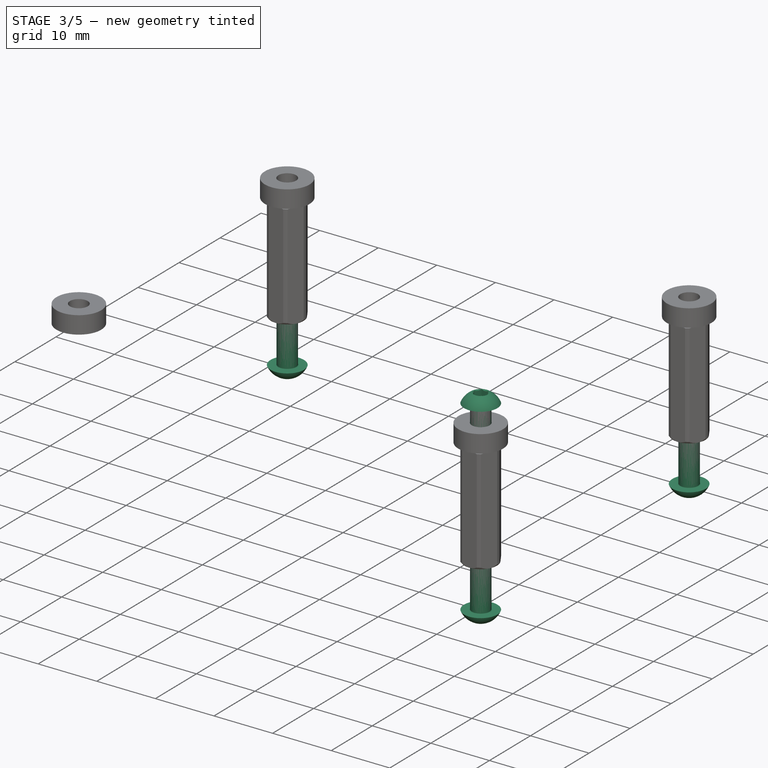
[diagram: stage 3 of 5 — iso view after this stage's code; geometry added in this stage tinted green]
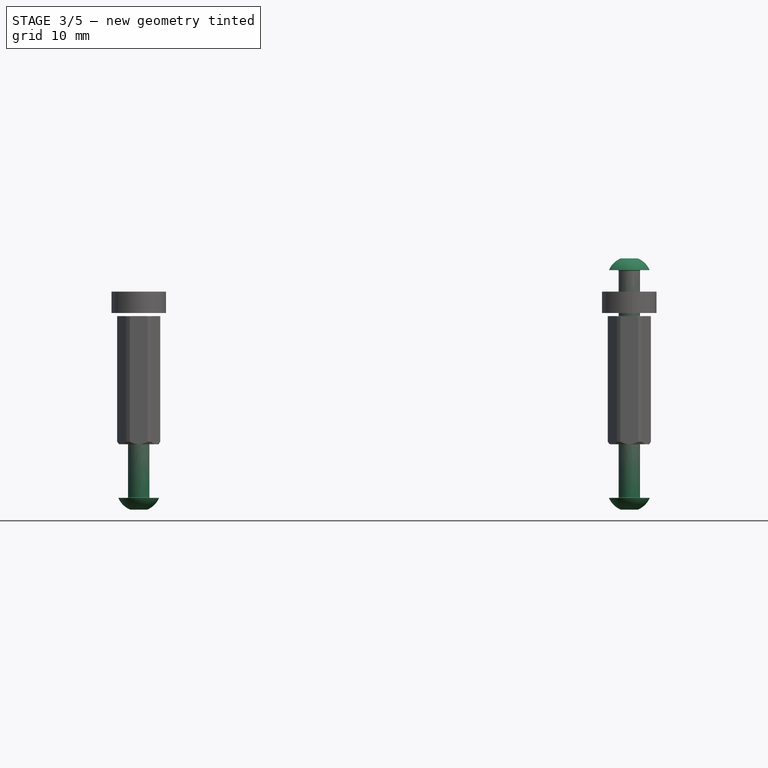
[diagram: stage 3 of 5 — front view after this stage's code; geometry added in this stage tinted green]
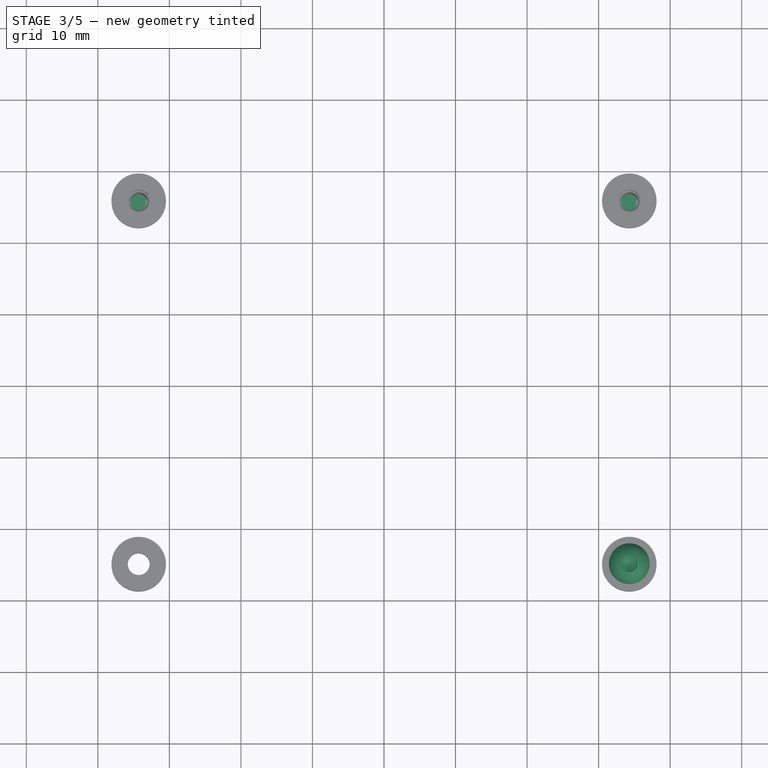
[diagram: stage 3 of 5 — top view after this stage's code; geometry added in this stage tinted green]
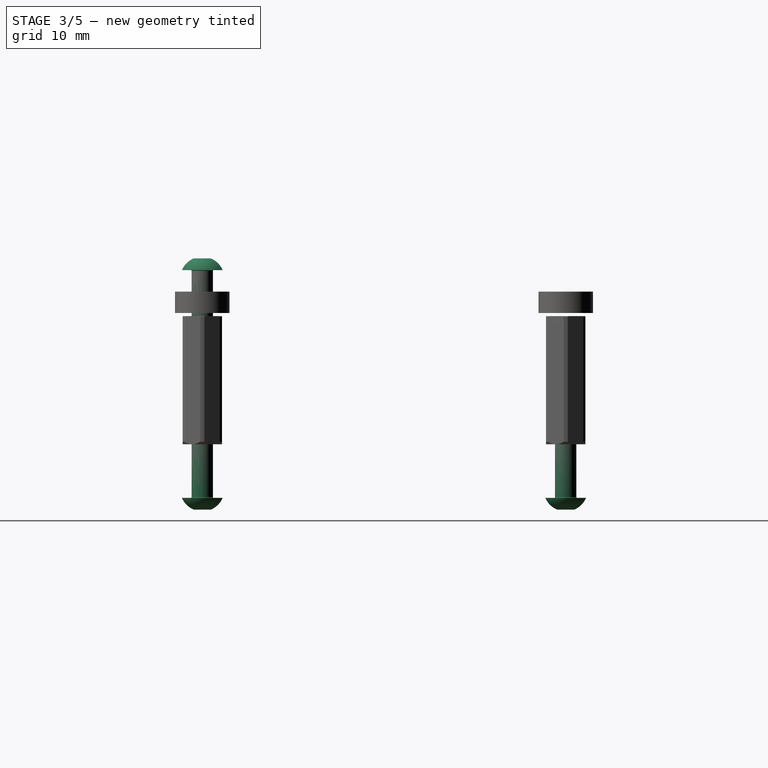
[diagram: stage 3 of 5 — right view after this stage's code; geometry added in this stage tinted green]
FEATURE [Part::FeaturePython] Screw004  label="M3x12-Screw004"  # Fasteners workbench fastener (typed FeaturePython)
  Placement = pos=(34.29,-25.4,24.336) rot=(0,0,1;0rad)
  baseObject = -> Body002 [Edge75]
  diameter = 1
  invert = false
  leftHanded = false
  length = 3
  lengthCustom = 12
  matchOuter = false
  offset = 0
  thread = false
  type = 51
FEATURE [Part::FeaturePython] Screw005  label="M3x12-Screw005"  # Fasteners workbench fastener (typed FeaturePython)
  Placement = pos=(-34.29,25.4,-7.5) rot=(1,0,0;3.14159rad)
  baseObject = -> Body [Edge39]
  diameter = 1
  invert = true
  leftHanded = false
  length = 3
  lengthCustom = 12
  matchOuter = false
  offset = 0
  thread = false
  type = 51
FEATURE [Part::FeaturePython] Screw006  label="M3x12-Screw006"  # Fasteners workbench fastener (typed FeaturePython)
  Placement = pos=(34.29,25.4,-7.5) rot=(1,0,0;3.14159rad)
  baseObject = -> Body [Edge42]
  diameter = 1
  invert = true
  leftHanded = false
  length = 3
  lengthCustom = 12
  matchOuter = false
  offset = 0
  thread = false
  type = 51
FEATURE [Part::FeaturePython] Screw007  label="M3x12-Screw007"  # Fasteners workbench fastener (typed FeaturePython)
  Placement = pos=(34.29,-25.4,-7.5) rot=(1,0,0;3.14159rad)
  baseObject = -> Body [Edge45]
  diameter = 1
  invert = true
  leftHanded = false
  length = 3
  lengthCustom = 12
  matchOuter = false
  offset = 0
  thread = false
  type = 51
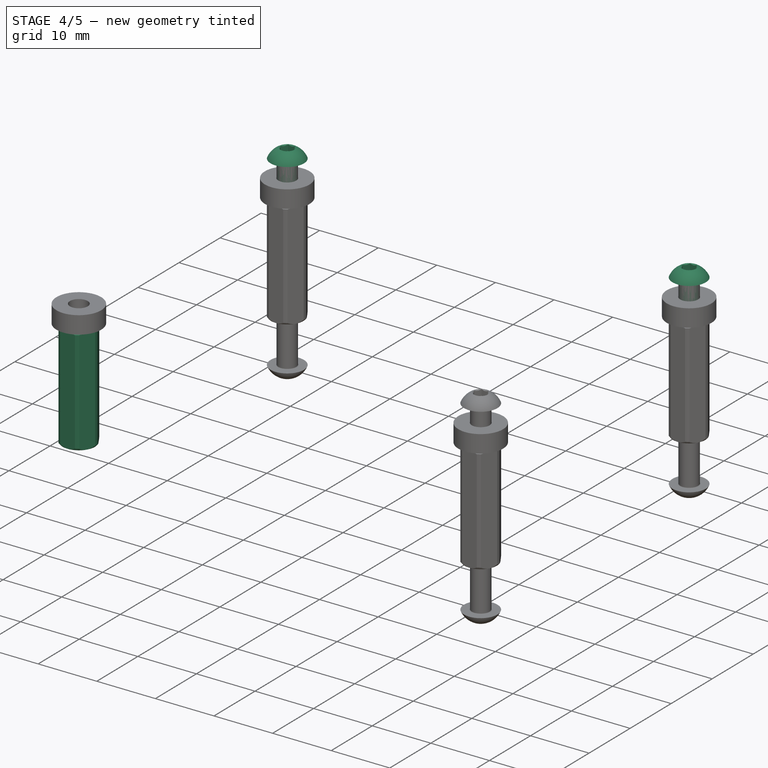
[diagram: stage 4 of 5 — iso view after this stage's code; geometry added in this stage tinted green]
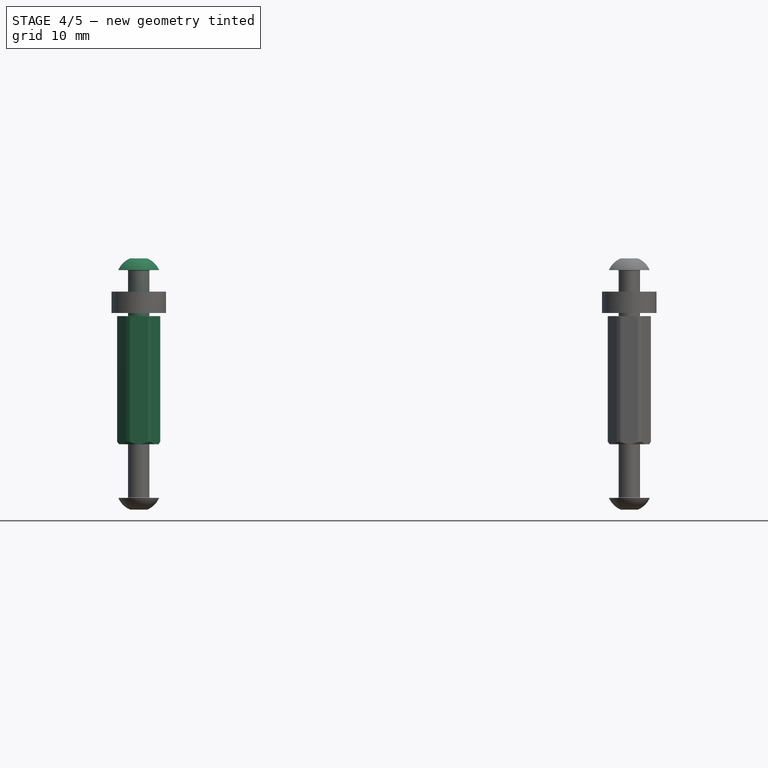
[diagram: stage 4 of 5 — front view after this stage's code; geometry added in this stage tinted green]
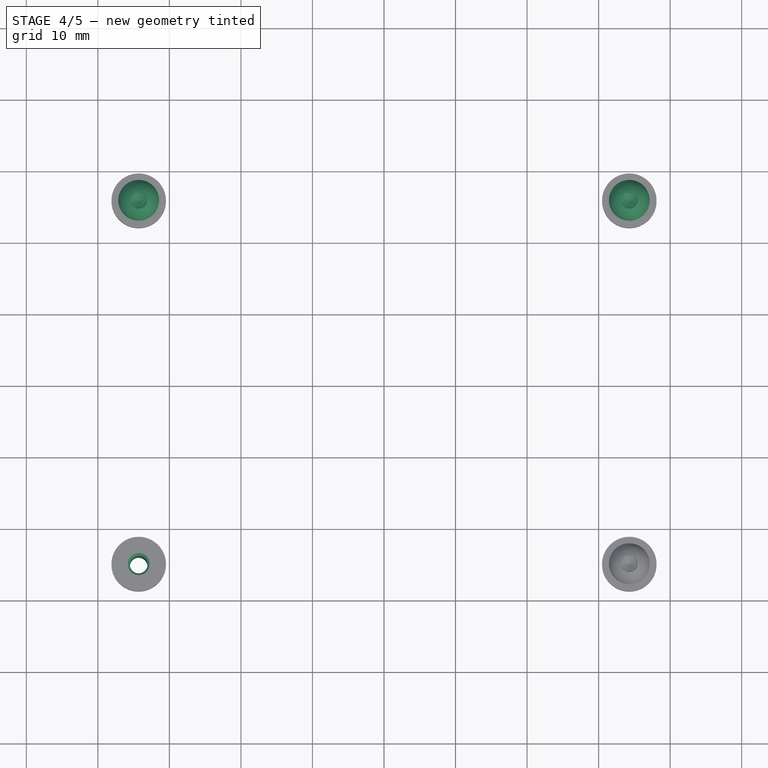
[diagram: stage 4 of 5 — top view after this stage's code; geometry added in this stage tinted green]
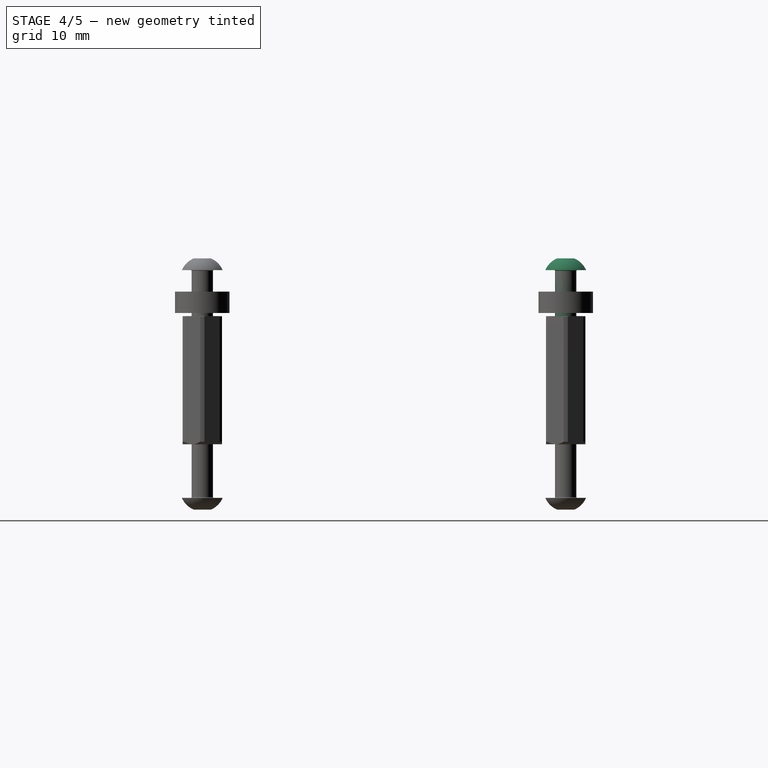
[diagram: stage 4 of 5 — right view after this stage's code; geometry added in this stage tinted green]
FEATURE [Part::FeaturePython] Spacer  label="M3x18xx5.5-Spacer001"  # Fasteners workbench fastener (typed FeaturePython)
  Placement = pos=(-34.29,-25.4,0) rot=(0,0,1;0rad)
  baseObject = -> Pcb_fc76 [Edge221]
  diameter = 2
  invert = false
  leftHanded = false
  length = 13
  lengthCustom = 18
  matchOuter = false
  offset = 0
  thread = false
  type = 0
  width = 1
FEATURE [Part::FeaturePython] Screw002  label="M3x12-Screw002"  # Fasteners workbench fastener (typed FeaturePython)
  Placement = pos=(-34.29,25.4,24.336) rot=(0,0,1;0rad)
  baseObject = -> Body002 [Edge69]
  diameter = 1
  invert = false
  leftHanded = false
  length = 3
  lengthCustom = 12
  matchOuter = false
  offset = 0
  thread = false
  type = 51
FEATURE [Part::FeaturePython] Screw003  label="M3x12-Screw003"  # Fasteners workbench fastener (typed FeaturePython)
  Placement = pos=(34.29,25.4,24.336) rot=(0,0,1;0rad)
  baseObject = -> Body002 [Edge72]
  diameter = 1
  invert = false
  leftHanded = false
  length = 3
  lengthCustom = 12
  matchOuter = false
  offset = 0
  thread = false
  type = 51
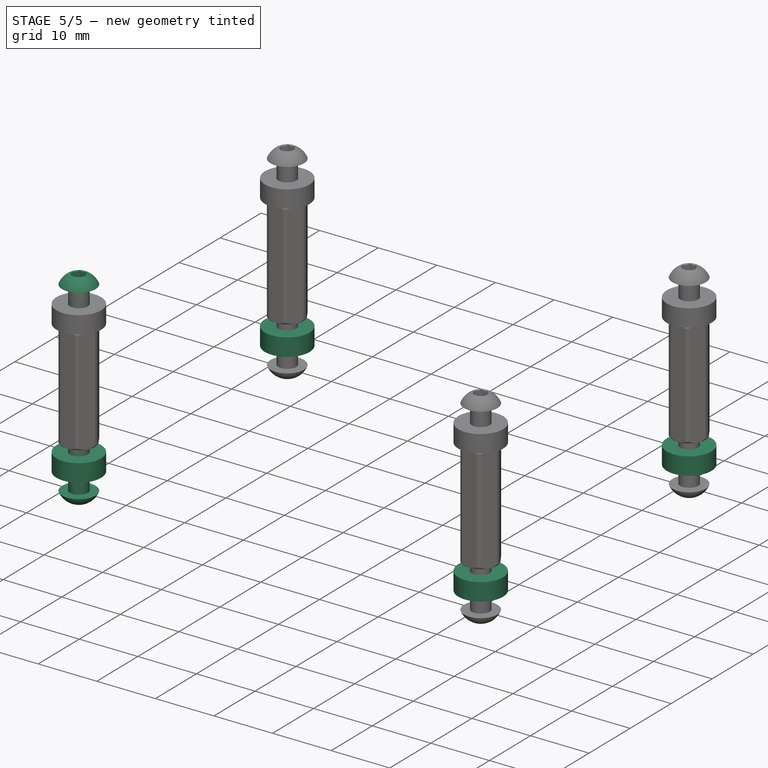
[diagram: stage 5 of 5 — iso view after this stage's code; geometry added in this stage tinted green]
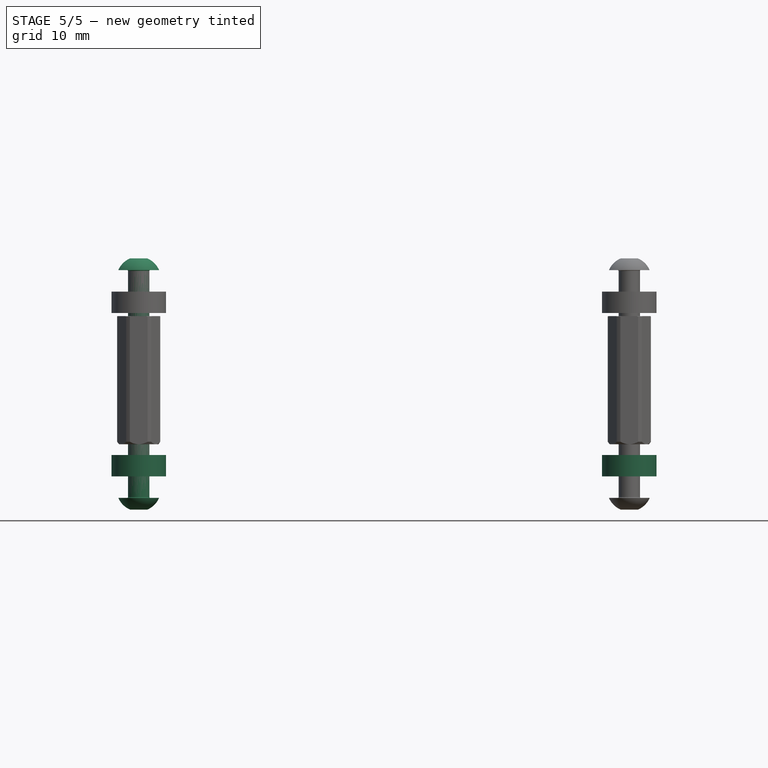
[diagram: stage 5 of 5 — front view after this stage's code; geometry added in this stage tinted green]
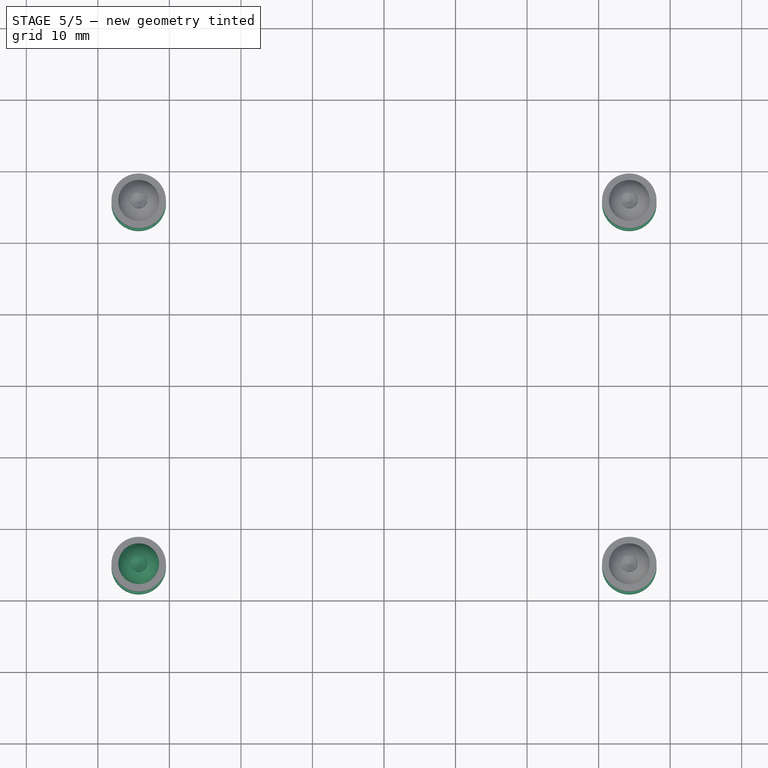
[diagram: stage 5 of 5 — top view after this stage's code; geometry added in this stage tinted green]
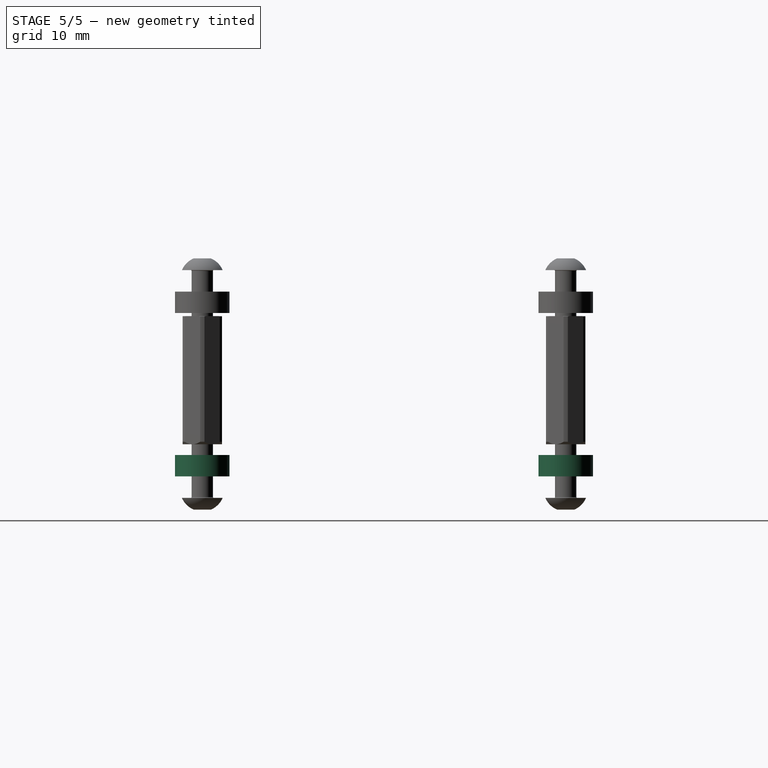
[diagram: stage 5 of 5 — right view after this stage's code; geometry added in this stage tinted green]
FEATURE [PartDesign::Body] Body  label="Plate_bottom"
  Group = -> [Sketch,Binder,Pad]
  Origin = -> Origin011
  Placement = pos=(0,0,-4.5) rot=(0,0,1;0rad)
  Tip = -> Pad
FEATURE [PartDesign::SubShapeBinder] Binder001  label="Binder001(Pad)"
  BindCopyOnChange = 0
  BindMode = 0
  ClaimChildren = false
  Context = -> Body001 [Binder001.]
  Fuse = false
  MakeFace = true
  OffsetFill = false
  OffsetIntersection = false
  OffsetJoinType = 0
  OffsetOpenResult = false
  PartialLoad = false
  Relative = true
  Support = -> [Body[Pad.]]
  _Version = 8
FEATURE [Sketcher::SketchObject] Sketch001
  ExternalGeometry = -> [Binder001]
  FullyConstrained = true
  MapMode = 5
  Placement = pos=(0,0,-4.5) rot=(0,0,1;0rad)
  Support = -> [Binder001]
  sketch-geometry (8):
    g0: Circle CenterX=-34.29 CenterY=25.4 CenterZ=0 NormalX=0 NormalY=0 NormalZ=1 AngleXU=0 Radius=1.524
    g1: Circle CenterX=34.29 CenterY=25.4 CenterZ=0 NormalX=0 NormalY=0 NormalZ=1 AngleXU=0 Radius=1.524
    g2: Circle CenterX=34.29 CenterY=-25.4 CenterZ=0 NormalX=0 NormalY=0 NormalZ=1 AngleXU=0 Radius=1.524
    g3: Circle CenterX=-34.29 CenterY=-25.4 CenterZ=0 NormalX=0 NormalY=0 NormalZ=1 AngleXU=0 Radius=1.524
    g4: Circle CenterX=-34.29 CenterY=-25.4 CenterZ=0 NormalX=0 NormalY=0 NormalZ=1 AngleXU=0 Radius=3.81
    g5: Circle CenterX=34.29 CenterY=-25.4 CenterZ=0 NormalX=0 NormalY=0 NormalZ=1 AngleXU=0 Radius=3.81
    g6: Circle CenterX=34.29 CenterY=25.4 CenterZ=0 NormalX=0 NormalY=0 NormalZ=1 AngleXU=0 Radius=3.81
    g7: Circle CenterX=-34.29 CenterY=25.4 CenterZ=0 NormalX=0 NormalY=0 NormalZ=1 AngleXU=0 Radius=3.81
  constraints (16):
    c: Coincident(g4,g3)
    c: Coincident(g5,g2)
    c: Coincident(g6,g1)
    c: Coincident(g7,g0)
    c: Equal(g0,g1)
    c: Equal(g1,g2)
    c: Equal(g2,g3)
    c: Equal(g4,g5)
    c: Equal(g5,g6)
    c: Equal(g6,g7)
    c: Coincident(g3,g-6)
    c: Coincident(g2,g-5)
    c: Coincident(g1,g-4)
    c: Coincident(g0,g-3)
    c: Equal(g3,g-6)
    c: Equal(g7,g-3)
FEATURE [PartDesign::Pad] Pad001
  Direction = (0,0,1)
  Length = 3
  Length2 = 100
  Profile = -> Sketch001
  Type = 0
FEATURE [PartDesign::Body] Body002  label="Plate_top"
  Group = -> [Binder002,Binder003,Sketch002,Pad002]
  Origin = -> Origin013
  Tip = -> Pad002
FEATURE [Part::FeaturePython] Screw  label="M3x12-Screw001"  # Fasteners workbench fastener (typed FeaturePython)
  Placement = pos=(-34.29,-25.4,24.336) rot=(0,0,1;0rad)
  baseObject = -> Body002 [Edge78]
  diameter = 1
  invert = false
  leftHanded = false
  length = 3
  lengthCustom = 12
  matchOuter = false
  offset = 0
  thread = false
  type = 51
FEATURE [Part::FeaturePython] Screw001  label="M3x12-Screw"  # Fasteners workbench fastener (typed FeaturePython)
  Placement = pos=(-34.29,-25.4,-7.5) rot=(1,0,0;3.14159rad)
  baseObject = -> Body [Edge48]
  diameter = 1
  invert = true
  leftHanded = false
  length = 3
  lengthCustom = 12
  matchOuter = false
  offset = 0
  thread = false
  type = 51
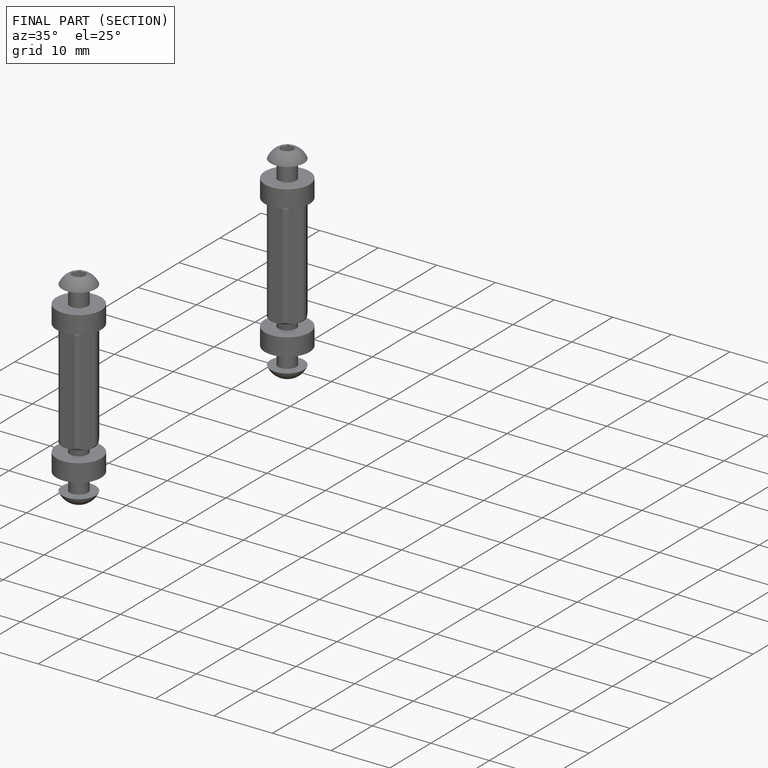
[diagram: finished part — half-section view (interior)]
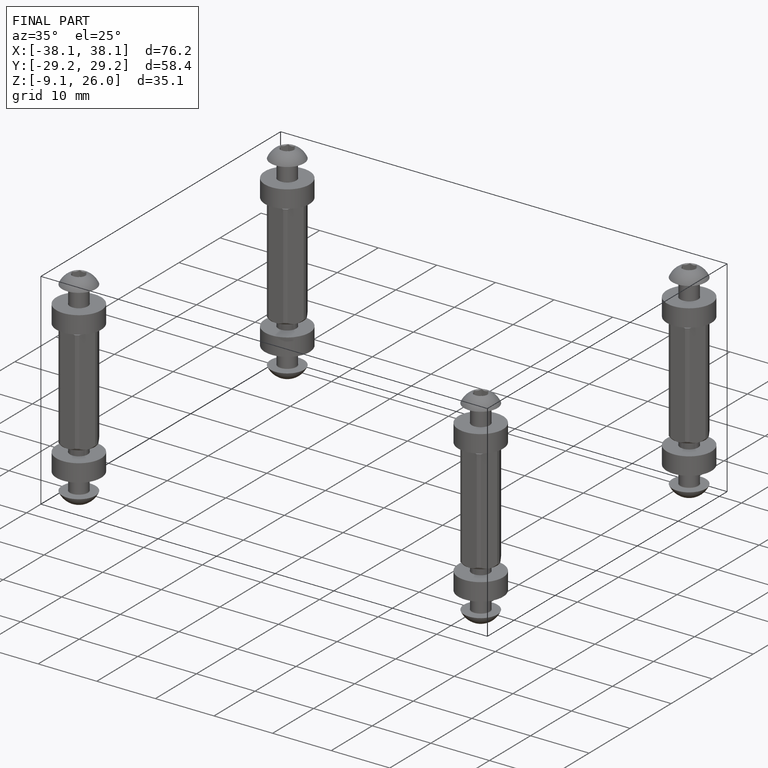
[diagram: finished part — iso view with bounding-box wireframe]
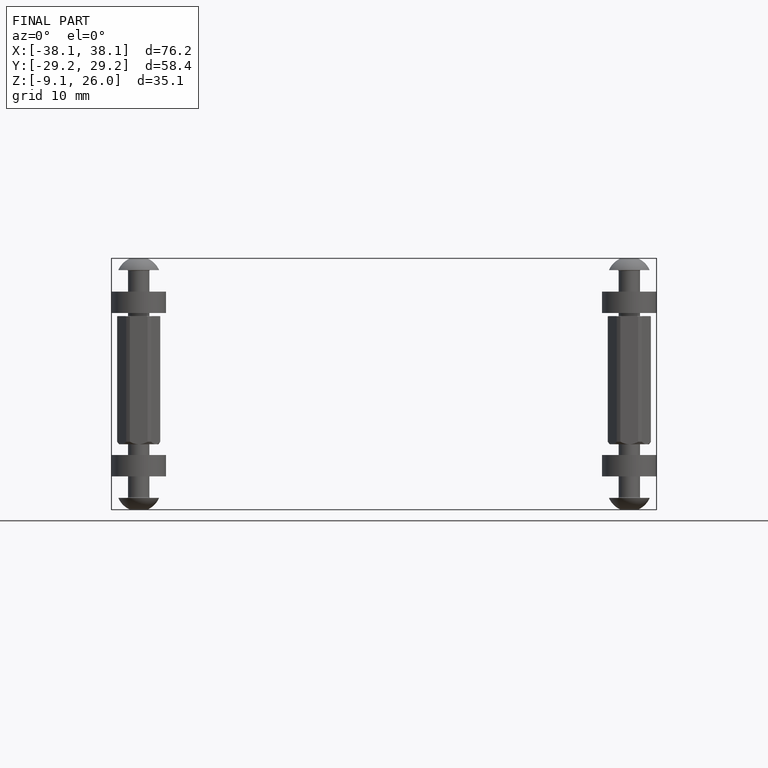
[diagram: finished part — front view with bounding-box wireframe]
